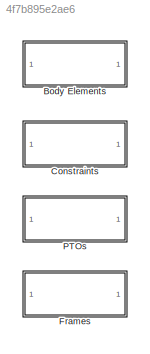
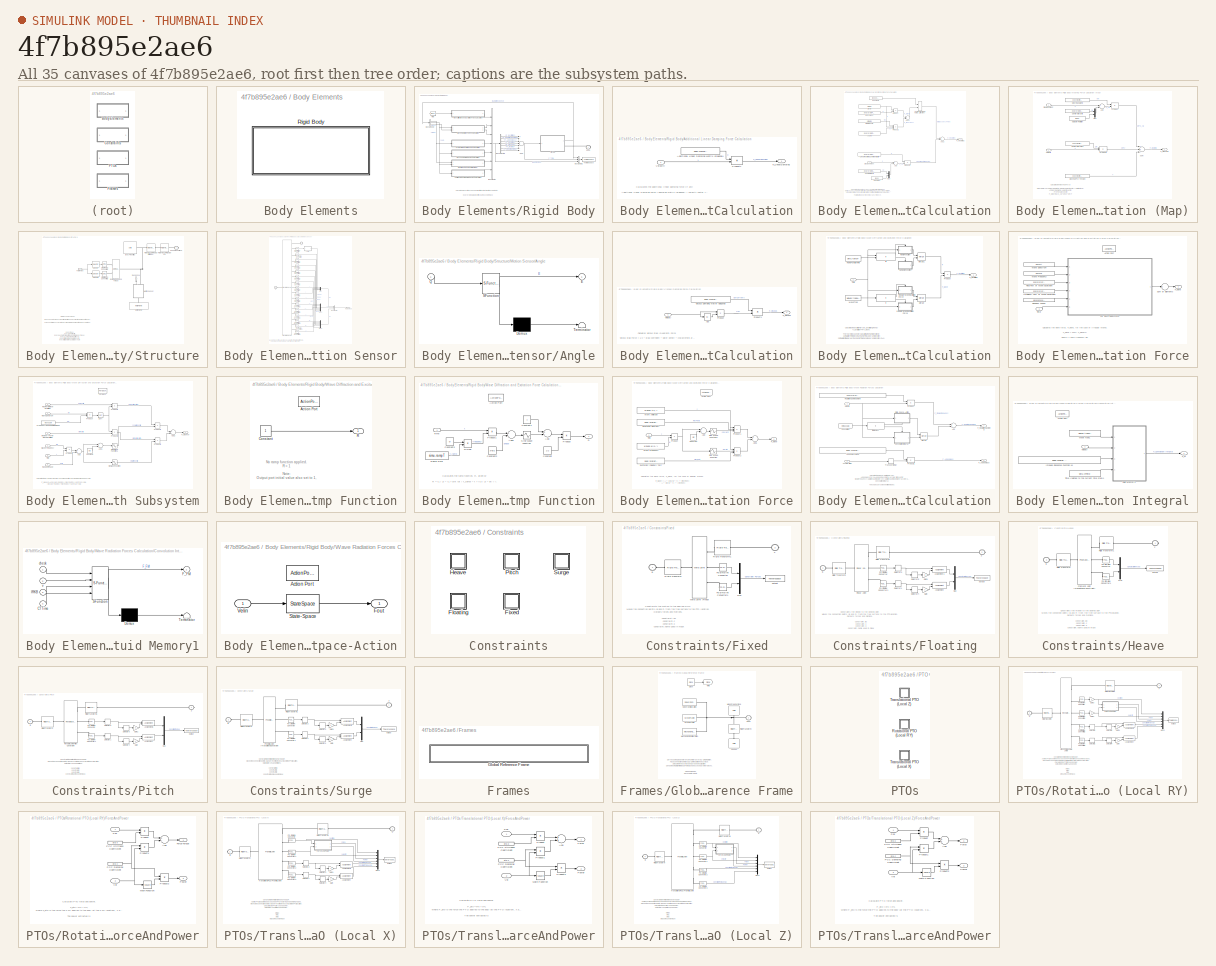
[diagram: thumbnail index - all 35 canvases of the model, root first then tree order]
MODEL slx_4f7b895e2ae6
KIND library
BLOCK [SubSystem] Body Elements
  Ports = []
  RequestExecContextInheritance = off
BLOCK [SubSystem] Body Elements/Rigid Body
  AttributesFormatString = %<body>
  Ports = [0, 0, 0, 0, 0, 0, 1]
  RequestExecContextInheritance = off
BLOCK [SubSystem] Body Elements/Rigid Body/Additional Linear Damping Force Calculation
  Ports = [1, 1]
  RequestExecContextInheritance = off
BLOCK [Constant] Body Elements/Rigid Body/Additional Linear Damping Force Calculation/Additional Linear Damping Matrix (diagonal)
  Value = body.hydroForce.linearDamping
BLOCK [Outport] Body Elements/Rigid Body/Additional Linear Damping Force Calculation/F_LinearDamping
  IconDisplay = Port number
BLOCK [Product] Body Elements/Rigid Body/Additional Linear Damping Force Calculation/Product1
  InputSameDT = off
  Multiplication = Matrix(*)
  OutDataTypeStr = Inherit: Inherit via internal rule
  Ports = [2, 1]
  RndMeth = Floor
  SaturateOnIntegerOverflow = off
BLOCK [Inport] Body Elements/Rigid Body/Additional Linear Damping Force Calculation/Velocity
  IconDisplay = Port number
BLOCK [BusCreator] Body Elements/Rigid Body/Bus Creator
  DisplayOption = bar
  Inputs = 7
  Ports = [7, 1]
BLOCK [BusCreator] Body Elements/Rigid Body/Bus Creator1
  DisplayOption = bar
  Inputs = 3
  Ports = [3, 1]
BLOCK [BusSelector] Body Elements/Rigid Body/Bus Selector
  OutputSignals = disp,vel,acc
  Ports = [1, 3]
BLOCK [BusSelector] Body Elements/Rigid Body/Bus Selector1
  OutputSignals = F_Excitation,F_RadiationDamping,F_AddedMass,F_Restoring,F_Viscous,F_Mooring,F_LinearDamping
  Ports = [1, 7]
BLOCK [PMIOPort] Body Elements/Rigid Body/Conn
  Port = 1
  Side = Right
BLOCK [SubSystem] Body Elements/Rigid Body/Hydrostatic Restoring Force Calculation
  Ports = [1, 1]
  RequestExecContextInheritance = off
BLOCK [Sum] Body Elements/Rigid Body/Hydrostatic Restoring Force Calculation/Add
  InputSameDT = off
  Inputs = +-
  OutDataTypeStr = Inherit: Inherit via internal rule
  Ports = [2, 1]
  SaturateOnIntegerOverflow = off
BLOCK [Sum] Body Elements/Rigid Body/Hydrostatic Restoring Force Calculation/Add1
  InputSameDT = off
  Inputs = +-
  OutDataTypeStr = Inherit: Inherit via internal rule
  Ports = [2, 1]
  SaturateOnIntegerOverflow = off
BLOCK [Sum] Body Elements/Rigid Body/Hydrostatic Restoring Force Calculation/Add2
  InputSameDT = off
  OutDataTypeStr = Inherit: Inherit via internal rule
  Ports = [2, 1]
  SaturateOnIntegerOverflow = off
BLOCK [Assignment] Body Elements/Rigid Body/Hydrostatic Restoring Force Calculation/Assignment (Add Net Bouyancy Force to Z-Direction)
  Indices = 3
  Ports = [2, 1]
BLOCK [Constant] Body Elements/Rigid Body/Hydrostatic Restoring Force Calculation/Body Mass
  Value = body.hydroForce.storage.mass
BLOCK [Constant] Body Elements/Rigid Body/Hydrostatic Restoring Force Calculation/Center of Gravity
  Value = body.hydroData.properties.cg
BLOCK [Constant] Body Elements/Rigid Body/Hydrostatic Restoring Force Calculation/Constant
  Value = [0 0 0]
BLOCK [Constant] Body Elements/Rigid Body/Hydrostatic Restoring Force Calculation/Constant1
  Value = [0 0 0 0 0 0]
BLOCK [Inport] Body Elements/Rigid Body/Hydrostatic Restoring Force Calculation/Displacement
  IconDisplay = Port number
BLOCK [Outport] Body Elements/Rigid Body/Hydrostatic Restoring Force Calculation/F_Restoring
  IconDisplay = Port number
BLOCK [Constant] Body Elements/Rigid Body/Hydrostatic Restoring Force Calculation/Gravity
  Value = simu.g
BLOCK [Constant] Body Elements/Rigid Body/Hydrostatic Restoring Force Calculation/Linear Restioring Coefficient Matrix
  Value = body.hydroForce.linearHydroRestCoef
BLOCK [Mux] Body Elements/Rigid Body/Hydrostatic Restoring Force Calculation/Mux
  DisplayOption = bar
  Inputs = 2
  Ports = [2, 1]
BLOCK [Product] Body Elements/Rigid Body/Hydrostatic Restoring Force Calculation/Product
  InputSameDT = off
  OutDataTypeStr = Inherit: Inherit via internal rule
  Ports = [2, 1]
  RndMeth = Floor
  SaturateOnIntegerOverflow = off
BLOCK [Product] Body Elements/Rigid Body/Hydrostatic Restoring Force Calculation/Product1
  InputSameDT = off
  Inputs = 3
  OutDataTypeStr = Inherit: Inherit via internal rule
  Ports = [3, 1]
  RndMeth = Floor
  SaturateOnIntegerOverflow = off
BLOCK [Product] Body Elements/Rigid Body/Hydrostatic Restoring Force Calculation/Product2
  InputSameDT = off
  Multiplication = Matrix(*)
  OutDataTypeStr = Inherit: Inherit via internal rule
  Ports = [2, 1]
  RndMeth = Floor
  SaturateOnIntegerOverflow = off
BLOCK [Constant] Body Elements/Rigid Body/Hydrostatic Restoring Force Calculation/Volume
  Value = body.hydroData.properties.disp_vol
BLOCK [Constant] Body Elements/Rigid Body/Hydrostatic Restoring Force Calculation/Water Density
  Value = simu.rho
BLOCK [SubSystem] Body Elements/Rigid Body/Mooring Force Calculation (Map)
  Ports = [2, 1]
  RequestExecContextInheritance = off
BLOCK [Constant] Body Elements/Rigid Body/Mooring Force Calculation (Map)/0 Disp for Rotation
  Value = [0 0 0]
BLOCK [Sum] Body Elements/Rigid Body/Mooring Force Calculation (Map)/Add
  InputSameDT = off
  Inputs = +-
  OutDataTypeStr = Inherit: Inherit via internal rule
  Ports = [2, 1]
  SaturateOnIntegerOverflow = off
BLOCK [Constant] Body Elements/Rigid Body/Mooring Force Calculation (Map)/Center of Gravity
  Value = body.hydroData.properties.cg
BLOCK [Constant] Body Elements/Rigid Body/Mooring Force Calculation (Map)/Center of Gravity2
  Value = body.mooring.c
BLOCK [Inport] Body Elements/Rigid Body/Mooring Force Calculation (Map)/Displacement
  IconDisplay = Port number
BLOCK [Outport] Body Elements/Rigid Body/Mooring Force Calculation (Map)/F_Mooring
  IconDisplay = Port number
BLOCK [Constant] Body Elements/Rigid Body/Mooring Force Calculation (Map)/Mooring K Matrix
  Value = body.mooring.k
BLOCK [Constant] Body Elements/Rigid Body/Mooring Force Calculation (Map)/Mooring Pre-Tension
  Value = body.mooring.preTension
BLOCK [Mux] Body Elements/Rigid Body/Mooring Force Calculation (Map)/Mux
  DisplayOption = bar
  Inputs = 2
  Ports = [2, 1]
BLOCK [Product] Body Elements/Rigid Body/Mooring Force Calculation (Map)/Product
  InputSameDT = off
  Multiplication = Matrix(*)
  OutDataTypeStr = Inherit: Inherit via internal rule
  Ports = [2, 1]
  RndMeth = Floor
  SaturateOnIntegerOverflow = off
BLOCK [Product] Body Elements/Rigid Body/Mooring Force Calculation (Map)/Product1
  InputSameDT = off
  Multiplication = Matrix(*)
  OutDataTypeStr = Inherit: Inherit via internal rule
  Ports = [2, 1]
  RndMeth = Floor
  SaturateOnIntegerOverflow = off
BLOCK [Inport] Body Elements/Rigid Body/Mooring Force Calculation (Map)/Velocity
  IconDisplay = Port number
  Port = 2
BLOCK [Sum] Body Elements/Rigid Body/Mooring Force Calculation (Map)/sum
  InputSameDT = off
  Inputs = ++-
  OutDataTypeStr = Inherit: Inherit via internal rule
  Ports = [3, 1]
  SaturateOnIntegerOverflow = off
BLOCK [SubSystem] Body Elements/Rigid Body/Structure
  Ports = [1, 1, 0, 0, 0, 0, 1]
  RequestExecContextInheritance = off
BLOCK [Reference] Body Elements/Rigid Body/Structure/Body Properties  REF=sm_lib/Body Elements/Solid
  BlockFunction = simmechanics.library.body_elements.solid
  BrickDimensionUnits = m
  BrickDimensions = [1 1 1]
  CenterOfMass = [0 0 0]
  CenterOfMassUnits = m
  ClassName = Solid
  CylinderLength = 1
  CylinderLengthUnits = m
  CylinderRadius = 1
  CylinderRadiusUnits = m
  Density = 1000
  DensityBased = on
  DensityUnits = kg/(m^3)
  EllipsoidRadii = [1 1 1]
  EllipsoidRadiiUnits = m
  ExtGeomFileName = geometry/Flap.stl
  ExtGeomFileType = STL
  ExtGeomFileUnits = m
  ExtrusionCrossSection = [1 1; -1 1; -1 -1; 1 -1]
  ExtrusionCrossSectionUnits = m
  ExtrusionLength = 1
  ExtrusionLengthUnits = m
  GeometryShape = FromFile
  GraphicAmbientColor = [0.15 0.15 0.15 1.0]
  GraphicDiffuseColor = [1 1 0]
  GraphicEmissiveColor = [0.0 0.0 0.0 1.0]
  GraphicOpacity = 1
  GraphicShininess = 75
  GraphicSpecularColor = [0.5 0.5 0.5 1.0]
  GraphicType = FromGeometry
  GraphicVisPropType = SimpleVisualProperties
  InertiaType = Custom
  LogSimulationData = off
  MarkerShape = Sphere
  MarkerSize = 10
  MarkerSizeUnits = m
  Mass = body.mass
  MassUnits = kg
  MomentsOfInertia = body.momOfInertia
  MomentsOfInertiaUnits = kg*m^2
  PolygonNumSides = 3
  PolygonOuterRadius = 1
  PolygonOuterRadiusUnits = m
  Ports = [0, 0, 0, 0, 0, 0, 1]
  ProductsOfInertia = [0 0 0]
  ProductsOfInertiaUnits = kg*m^2
  RectangleSize = [1 1]
  RectangleSizeUnits = m
  RevolutionAngle = 180
  RevolutionAngleUnits = deg
  RevolutionCrossSection = [1 1; 1 -1; 2 -1; 2 1]
  RevolutionCrossSectionUnits = m
  RevolutionExtent = Full
  SourceBlock = sm_lib/Body Elements/Solid
  SourceType = Solid
  SphereRadius = 1
  SphereRadiusUnits = m
BLOCK [PMIOPort] Body Elements/Rigid Body/Structure/Conn Free Surface
  Port = 1
  Side = Right
BLOCK [Reference] Body Elements/Rigid Body/Structure/External Force and Torque  REF=sm_lib/Forces and
Torques/External Force
and Torque
  BlockFunction = simmechanics.library.forces_torques.external_force_torque
  ClassName = ExternalForceTorque
  EnableForce = on
  EnableForceX = off
  EnableForceY = off
  EnableForceZ = off
  EnableTorque = on
  EnableTorqueX = off
  EnableTorqueY = off
  EnableTorqueZ = off
  ForceResolutionFrame = World
  LogSimulationData = off
  Ports = [0, 0, 0, 0, 0, 2, 1]
  SourceBlock = sm_lib/Forces and\nTorques/External Force\nand Torque
  SourceType = External Force\nand Torque
  TorqueResolutionFrame = World
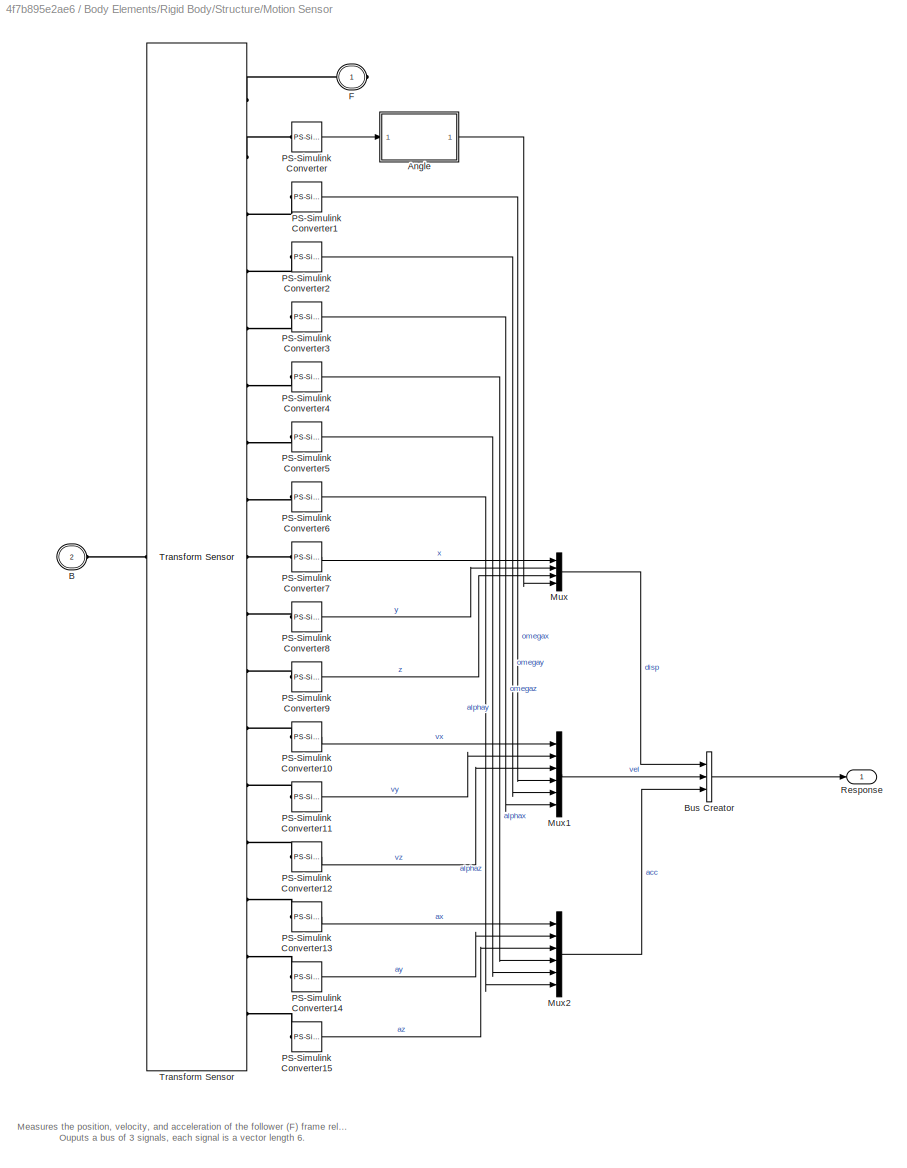
BLOCK [SubSystem] Body Elements/Rigid Body/Structure/Motion Sensor
  Ports = [0, 1, 0, 0, 0, 1, 1]
  RequestExecContextInheritance = off
BLOCK [SubSystem] Body Elements/Rigid Body/Structure/Motion Sensor/Angle
  ErrorFcn = Stateflow.Translate.translate
  PermitHierarchicalResolution = ExplicitOnly
  Ports = [1, 1]
  RequestExecContextInheritance = off
  SFBlockType = MATLAB Function
  TreatAsAtomicUnit = on
BLOCK [Demux] Body Elements/Rigid Body/Structure/Motion Sensor/Angle/ Demux 
  Outputs = 1
  Ports = [1, 1]
BLOCK [S-Function] Body Elements/Rigid Body/Structure/Motion Sensor/Angle/ SFunction 
  EnableBusSupport = off
  FunctionName = sf_sfun
  PortCounts = [1 2]
  Ports = [1, 2]
  Tag = Stateflow S-Function WECSim_Lib 8
BLOCK [Terminator] Body Elements/Rigid Body/Structure/Motion Sensor/Angle/ Terminator 
BLOCK [Outport] Body Elements/Rigid Body/Structure/Motion Sensor/Angle/E
  IconDisplay = Port number
BLOCK [Inport] Body Elements/Rigid Body/Structure/Motion Sensor/Angle/Q
  IconDisplay = Port number
BLOCK [PMIOPort] Body Elements/Rigid Body/Structure/Motion Sensor/B
  Port = 2
  Side = Left
BLOCK [BusCreator] Body Elements/Rigid Body/Structure/Motion Sensor/Bus Creator
  DisplayOption = bar
  Inputs = 3
  Ports = [3, 1]
BLOCK [PMIOPort] Body Elements/Rigid Body/Structure/Motion Sensor/F
  Port = 1
  Side = Right
BLOCK [Mux] Body Elements/Rigid Body/Structure/Motion Sensor/Mux
  DisplayOption = bar
  Ports = [4, 1]
BLOCK [Mux] Body Elements/Rigid Body/Structure/Motion Sensor/Mux1
  DisplayOption = bar
  Inputs = 6
  Ports = [6, 1]
BLOCK [Mux] Body Elements/Rigid Body/Structure/Motion Sensor/Mux2
  DisplayOption = bar
  Inputs = 6
  Ports = [6, 1]
BLOCK [Reference] Body Elements/Rigid Body/Structure/Motion Sensor/PS-Simulink Converter  REF=nesl_utility/PS-Simulink
Converter
  AffineConversion = off
  Frequencies = []
  LeftPortType = input
  PhysicalDomain = network_engine_domain
  Ports = [0, 1, 0, 0, 0, 1]
  PseudoPeriodic = off
  RightPortType = output
  SourceBlock = nesl_utility/PS-Simulink\nConverter
  SourceType = PS-Simulink\nConverter
  SubClassName = ps_output
  Unit = 1
BLOCK [Reference] Body Elements/Rigid Body/Structure/Motion Sensor/PS-Simulink Converter1  REF=nesl_utility/PS-Simulink
Converter
  AffineConversion = off
  Frequencies = []
  LeftPortType = input
  PhysicalDomain = network_engine_domain
  Ports = [0, 1, 0, 0, 0, 1]
  PseudoPeriodic = off
  RightPortType = output
  SourceBlock = nesl_utility/PS-Simulink\nConverter
  SourceType = PS-Simulink\nConverter
  SubClassName = ps_output
  Unit = 1
BLOCK [Reference] Body Elements/Rigid Body/Structure/Motion Sensor/PS-Simulink Converter10  REF=nesl_utility/PS-Simulink
Converter
  AffineConversion = off
  Frequencies = []
  LeftPortType = input
  PhysicalDomain = network_engine_domain
  Ports = [0, 1, 0, 0, 0, 1]
  PseudoPeriodic = off
  RightPortType = output
  SourceBlock = nesl_utility/PS-Simulink\nConverter
  SourceType = PS-Simulink\nConverter
  SubClassName = ps_output
  Unit = 1
BLOCK [Reference] Body Elements/Rigid Body/Structure/Motion Sensor/PS-Simulink Converter11  REF=nesl_utility/PS-Simulink
Converter
  AffineConversion = off
  Frequencies = []
  LeftPortType = input
  PhysicalDomain = network_engine_domain
  Ports = [0, 1, 0, 0, 0, 1]
  PseudoPeriodic = off
  RightPortType = output
  SourceBlock = nesl_utility/PS-Simulink\nConverter
  SourceType = PS-Simulink\nConverter
  SubClassName = ps_output
  Unit = 1
BLOCK [Reference] Body Elements/Rigid Body/Structure/Motion Sensor/PS-Simulink Converter12  REF=nesl_utility/PS-Simulink
Converter
  AffineConversion = off
  Frequencies = []
  LeftPortType = input
  PhysicalDomain = network_engine_domain
  Ports = [0, 1, 0, 0, 0, 1]
  PseudoPeriodic = off
  RightPortType = output
  SourceBlock = nesl_utility/PS-Simulink\nConverter
  SourceType = PS-Simulink\nConverter
  SubClassName = ps_output
  Unit = 1
BLOCK [Reference] Body Elements/Rigid Body/Structure/Motion Sensor/PS-Simulink Converter13  REF=nesl_utility/PS-Simulink
Converter
  AffineConversion = off
  Frequencies = []
  LeftPortType = input
  PhysicalDomain = network_engine_domain
  Ports = [0, 1, 0, 0, 0, 1]
  PseudoPeriodic = off
  RightPortType = output
  SourceBlock = nesl_utility/PS-Simulink\nConverter
  SourceType = PS-Simulink\nConverter
  SubClassName = ps_output
  Unit = 1
BLOCK [Reference] Body Elements/Rigid Body/Structure/Motion Sensor/PS-Simulink Converter14  REF=nesl_utility/PS-Simulink
Converter
  AffineConversion = off
  Frequencies = []
  LeftPortType = input
  PhysicalDomain = network_engine_domain
  Ports = [0, 1, 0, 0, 0, 1]
  PseudoPeriodic = off
  RightPortType = output
  SourceBlock = nesl_utility/PS-Simulink\nConverter
  SourceType = PS-Simulink\nConverter
  SubClassName = ps_output
  Unit = 1
BLOCK [Reference] Body Elements/Rigid Body/Structure/Motion Sensor/PS-Simulink Converter15  REF=nesl_utility/PS-Simulink
Converter
  AffineConversion = off
  Frequencies = []
  LeftPortType = input
  PhysicalDomain = network_engine_domain
  Ports = [0, 1, 0, 0, 0, 1]
  PseudoPeriodic = off
  RightPortType = output
  SourceBlock = nesl_utility/PS-Simulink\nConverter
  SourceType = PS-Simulink\nConverter
  SubClassName = ps_output
  Unit = 1
BLOCK [Reference] Body Elements/Rigid Body/Structure/Motion Sensor/PS-Simulink Converter2  REF=nesl_utility/PS-Simulink
Converter
  AffineConversion = off
  Frequencies = []
  LeftPortType = input
  PhysicalDomain = network_engine_domain
  Ports = [0, 1, 0, 0, 0, 1]
  PseudoPeriodic = off
  RightPortType = output
  SourceBlock = nesl_utility/PS-Simulink\nConverter
  SourceType = PS-Simulink\nConverter
  SubClassName = ps_output
  Unit = 1
BLOCK [Reference] Body Elements/Rigid Body/Structure/Motion Sensor/PS-Simulink Converter3  REF=nesl_utility/PS-Simulink
Converter
  AffineConversion = off
  Frequencies = []
  LeftPortType = input
  PhysicalDomain = network_engine_domain
  Ports = [0, 1, 0, 0, 0, 1]
  PseudoPeriodic = off
  RightPortType = output
  SourceBlock = nesl_utility/PS-Simulink\nConverter
  SourceType = PS-Simulink\nConverter
  SubClassName = ps_output
  Unit = 1
BLOCK [Reference] Body Elements/Rigid Body/Structure/Motion Sensor/PS-Simulink Converter4  REF=nesl_utility/PS-Simulink
Converter
  AffineConversion = off
  Frequencies = []
  LeftPortType = input
  PhysicalDomain = network_engine_domain
  Ports = [0, 1, 0, 0, 0, 1]
  PseudoPeriodic = off
  RightPortType = output
  SourceBlock = nesl_utility/PS-Simulink\nConverter
  SourceType = PS-Simulink\nConverter
  SubClassName = ps_output
  Unit = 1
BLOCK [Reference] Body Elements/Rigid Body/Structure/Motion Sensor/PS-Simulink Converter5  REF=nesl_utility/PS-Simulink
Converter
  AffineConversion = off
  Frequencies = []
  LeftPortType = input
  PhysicalDomain = network_engine_domain
  Ports = [0, 1, 0, 0, 0, 1]
  PseudoPeriodic = off
  RightPortType = output
  SourceBlock = nesl_utility/PS-Simulink\nConverter
  SourceType = PS-Simulink\nConverter
  SubClassName = ps_output
  Unit = 1
BLOCK [Reference] Body Elements/Rigid Body/Structure/Motion Sensor/PS-Simulink Converter6  REF=nesl_utility/PS-Simulink
Converter
  AffineConversion = off
  Frequencies = []
  LeftPortType = input
  PhysicalDomain = network_engine_domain
  Ports = [0, 1, 0, 0, 0, 1]
  PseudoPeriodic = off
  RightPortType = output
  SourceBlock = nesl_utility/PS-Simulink\nConverter
  SourceType = PS-Simulink\nConverter
  SubClassName = ps_output
  Unit = 1
BLOCK [Reference] Body Elements/Rigid Body/Structure/Motion Sensor/PS-Simulink Converter7  REF=nesl_utility/PS-Simulink
Converter
  AffineConversion = off
  Frequencies = []
  LeftPortType = input
  PhysicalDomain = network_engine_domain
  Ports = [0, 1, 0, 0, 0, 1]
  PseudoPeriodic = off
  RightPortType = output
  SourceBlock = nesl_utility/PS-Simulink\nConverter
  SourceType = PS-Simulink\nConverter
  SubClassName = ps_output
  Unit = 1
BLOCK [Reference] Body Elements/Rigid Body/Structure/Motion Sensor/PS-Simulink Converter8  REF=nesl_utility/PS-Simulink
Converter
  AffineConversion = off
  Frequencies = []
  LeftPortType = input
  PhysicalDomain = network_engine_domain
  Ports = [0, 1, 0, 0, 0, 1]
  PseudoPeriodic = off
  RightPortType = output
  SourceBlock = nesl_utility/PS-Simulink\nConverter
  SourceType = PS-Simulink\nConverter
  SubClassName = ps_output
  Unit = 1
BLOCK [Reference] Body Elements/Rigid Body/Structure/Motion Sensor/PS-Simulink Converter9  REF=nesl_utility/PS-Simulink
Converter
  AffineConversion = off
  Frequencies = []
  LeftPortType = input
  PhysicalDomain = network_engine_domain
  Ports = [0, 1, 0, 0, 0, 1]
  PseudoPeriodic = off
  RightPortType = output
  SourceBlock = nesl_utility/PS-Simulink\nConverter
  SourceType = PS-Simulink\nConverter
  SubClassName = ps_output
  Unit = 1
BLOCK [Outport] Body Elements/Rigid Body/Structure/Motion Sensor/Response
  IconDisplay = Port number
BLOCK [Reference] Body Elements/Rigid Body/Structure/Motion Sensor/Transform Sensor  REF=sm_lib/Frames and
Transforms/Transform
Sensor
  BlockFunction = simmechanics.library.frames_transforms.transform_sensor
  ClassName = TransformSensor
  LogSimulationData = off
  MeasurementFrame = World
  Ports = [0, 0, 0, 0, 0, 1, 17]
  SenseAlpha1 = off
  SenseAlpha2 = off
  SenseAlpha3 = off
  SenseAlphaX = on
  SenseAlphaY = on
  SenseAlphaZ = on
  SenseAngle = off
  SenseAngle1 = off
  SenseAngle2 = off
  SenseAngle3 = off
  SenseAxis = off
  SenseAzim = off
  SenseAzimDDot = off
  SenseAzimDot = off
  SenseDist = off
  SenseDistDDot = off
  SenseDistDot = off
  SenseInc = off
  SenseIncDDot = off
  SenseIncDot = off
  SenseOmega1 = off
  SenseOmega2 = off
  SenseOmega3 = off
  SenseOmegaX = on
  SenseOmegaY = on
  SenseOmegaZ = on
  SenseQ = on
  SenseQDDot = off
  SenseQDot = off
  SenseR = off
  SenseRDDot = off
  SenseRDot = off
  SenseRad = off
  SenseRadDDot = off
  SenseRadDot = off
  SenseX = on
  SenseXDDot = on
  SenseXDot = on
  SenseY = on
  SenseYDDot = on
  SenseYDot = on
  SenseZ = on
  SenseZDDot = on
  SenseZDot = on
  SourceBlock = sm_lib/Frames and\nTransforms/Transform\nSensor
  SourceType = Transform\nSensor
BLOCK [Outport] Body Elements/Rigid Body/Structure/Response
  IconDisplay = Port number
BLOCK [Reference] Body Elements/Rigid Body/Structure/Rigid Transform (Setup CG)  REF=sm_lib/Frames and
Transforms/Rigid
Transform
  BaseAlignAxisA = +Y
  BaseAlignAxisB = +Z
  BlockFunction = simmechanics.library.frames_transforms.rigid_transform
  ClassName = RigidTransform
  FollAlignAxisA = +X
  FollAlignAxisB = +Y
  LogSimulationData = off
  Ports = [0, 0, 0, 0, 0, 1, 1]
  RotationAngle = 0.05
  RotationAngleUnits = rad
  RotationArbitraryAxis = [0.57735026918962584 0.57735026918962584 0.57735026918962584]
  RotationMatrix = [1 0 0; 0 1 0; 0 0 1]
  RotationMethod = None
  RotationStandardAxis = +Y
  SourceBlock = sm_lib/Frames and\nTransforms/Rigid\nTransform
  SourceType = Rigid\nTransform
  TranslationCartesianOffset = body.hydroData.properties.cg
  TranslationLengthUnit = m
  TranslationMethod = Cartesian
  TranslationROffset = 0
  TranslationROffsetUnits = m
  TranslationStandardAxis = +Z
  TranslationStandardOffset = 0
  TranslationThetaOffset = 0
  TranslationThetaOffsetUnits = deg
  TranslationZOffset = 0
  TranslationZOffsetUnits = m
BLOCK [Reference] Body Elements/Rigid Body/Structure/Rigid Transform (Setup Initial Disp)  REF=sm_lib/Frames and
Transforms/Rigid
Transform
  BaseAlignAxisA = +Y
  BaseAlignAxisB = +Z
  BlockFunction = simmechanics.library.frames_transforms.rigid_transform
  ClassName = RigidTransform
  FollAlignAxisA = +X
  FollAlignAxisB = +Y
  LogSimulationData = off
  Ports = [0, 0, 0, 0, 0, 1, 1]
  RotationAngle = body.initDisp.initAngularDispAngle
  RotationAngleUnits = rad
  RotationArbitraryAxis = body.initDisp.initAngularDispAxis
  RotationMatrix = [1 0 0; 0 1 0; 0 0 1]
  RotationMethod = ArbitraryAxis
  RotationStandardAxis = +Y
  SourceBlock = sm_lib/Frames and\nTransforms/Rigid\nTransform
  SourceType = Rigid\nTransform
  TranslationCartesianOffset = body.initDisp.initLinDisp
  TranslationLengthUnit = m
  TranslationMethod = Cartesian
  TranslationROffset = 0
  TranslationROffsetUnits = m
  TranslationStandardAxis = +Z
  TranslationStandardOffset = 0
  TranslationThetaOffset = 0
  TranslationThetaOffsetUnits = deg
  TranslationZOffset = 0
  TranslationZOffsetUnits = m
BLOCK [Selector] Body Elements/Rigid Body/Structure/Selector
  Indices = [1:3]
  InputPortWidth = 6
  Ports = [1, 1]
BLOCK [Selector] Body Elements/Rigid Body/Structure/Selector1
  Indices = [4:6]
  InputPortWidth = 6
  Ports = [1, 1]
BLOCK [Reference] Body Elements/Rigid Body/Structure/Simulink-PS Converter1  REF=nesl_utility/Simulink-PS
Converter
  AffineConversion = off
  Frequencies = []
  InputFilterTimeConstant = 0.001
  InputFiltering = off
  LeftPortType = input
  NoiseDistribution = none
  NoiseParameters = []
  PhysicalDomain = network_engine_domain
  Ports = [1, 0, 0, 0, 0, 0, 1]
  PseudoPeriodic = off
  RightPortType = output
  SimscapeFilterOrder = 1
  SourceBlock = nesl_utility/Simulink-PS\nConverter
  SourceType = Simulink-PS\nConverter
  SubClassName = ps_input
  UdotUserProvided = 1
  Unit = 1
BLOCK [Reference] Body Elements/Rigid Body/Structure/Simulink-PS Converter2  REF=nesl_utility/Simulink-PS
Converter
  AffineConversion = off
  Frequencies = []
  InputFilterTimeConstant = 0.001
  InputFiltering = off
  LeftPortType = input
  NoiseDistribution = none
  NoiseParameters = []
  PhysicalDomain = network_engine_domain
  Ports = [1, 0, 0, 0, 0, 0, 1]
  PseudoPeriodic = off
  RightPortType = output
  SimscapeFilterOrder = 1
  SourceBlock = nesl_utility/Simulink-PS\nConverter
  SourceType = Simulink-PS\nConverter
  SubClassName = ps_input
  UdotUserProvided = 1
  Unit = 1
BLOCK [Inport] Body Elements/Rigid Body/Structure/Total Force
  IconDisplay = Port number
BLOCK [Reference] Body Elements/Rigid Body/Structure/World Frame  REF=sm_lib/Frames and
Transforms/World Frame
  BlockFunction = simmechanics.library.frames_transforms.world_frame
  ClassName = WorldFrame
  LogSimulationData = off
  Ports = [0, 0, 0, 0, 0, 0, 1]
  SourceBlock = sm_lib/Frames and\nTransforms/World Frame
  SourceType = World Frame
BLOCK [Sum] Body Elements/Rigid Body/Sum
  InputSameDT = off
  Inputs = +------
  OutDataTypeStr = Inherit: Inherit via internal rule
  Ports = [7, 1]
  SaturateOnIntegerOverflow = off
BLOCK [From] Body Elements/Rigid Body/Time
  GotoTag = Clock
  TagVisibility = global
BLOCK [ToWorkspace] Body Elements/Rigid Body/To Workspace
  MaxDataPoints = inf
  Ports = [1]
  SampleTime = -1
  SaveFormat = Structure With Time
  VariableName = body1_out
BLOCK [SubSystem] Body Elements/Rigid Body/Viscous Damping Force Calculation
  Ports = [1, 1]
  RequestExecContextInheritance = off
BLOCK [Abs] Body Elements/Rigid Body/Viscous Damping Force Calculation/Abs
  SaturateOnIntegerOverflow = off
BLOCK [Outport] Body Elements/Rigid Body/Viscous Damping Force Calculation/F_Viscous
  IconDisplay = Port number
BLOCK [Product] Body Elements/Rigid Body/Viscous Damping Force Calculation/Product
  InputSameDT = off
  OutDataTypeStr = Inherit: Inherit via internal rule
  Ports = [2, 1]
  RndMeth = Floor
  SaturateOnIntegerOverflow = off
BLOCK [Product] Body Elements/Rigid Body/Viscous Damping Force Calculation/Product1
  InputSameDT = off
  Multiplication = Matrix(*)
  OutDataTypeStr = Inherit: Inherit via internal rule
  Ports = [2, 1]
  RndMeth = Floor
  SaturateOnIntegerOverflow = off
BLOCK [Inport] Body Elements/Rigid Body/Viscous Damping Force Calculation/Velocity
  IconDisplay = Port number
BLOCK [Constant] Body Elements/Rigid Body/Viscous Damping Force Calculation/Viscous Damping Matrix (diagonal) 
  Value = body.hydroForce.visDrag
BLOCK [SubSystem] Body Elements/Rigid Body/Wave Diffraction and Excitation Force Calculation
  Ports = [1, 1]
  RequestExecContextInheritance = off
BLOCK [Outport] Body Elements/Rigid Body/Wave Diffraction and Excitation Force Calculation/F_Excitation
  IconDisplay = Port number
  PortDimensions = 6
  VarSizeSig = No
BLOCK [If] Body Elements/Rigid Body/Wave Diffraction and Excitation Force Calculation/If
  IfExpression = u1 < 20
  Ports = [1, 2]
BLOCK [If] Body Elements/Rigid Body/Wave Diffraction and Excitation Force Calculation/If1
  IfExpression = u1 < u2
  NumInputs = 2
  Ports = [2, 2]
BLOCK [SubSystem] Body Elements/Rigid Body/Wave Diffraction and Excitation Force Calculation/Iregular Wave Excitation Force
  Ports = [1, 1, 0, 0, 0, 0, 0, 1]
  RequestExecContextInheritance = off
  TreatAsAtomicUnit = on
BLOCK [ActionPort] Body Elements/Rigid Body/Wave Diffraction and Excitation Force Calculation/Iregular Wave Excitation Force/Action Port
BLOCK [Outport] Body Elements/Rigid Body/Wave Diffraction and Excitation Force Calculation/Iregular Wave Excitation Force/F_wave
  IconDisplay = Port number
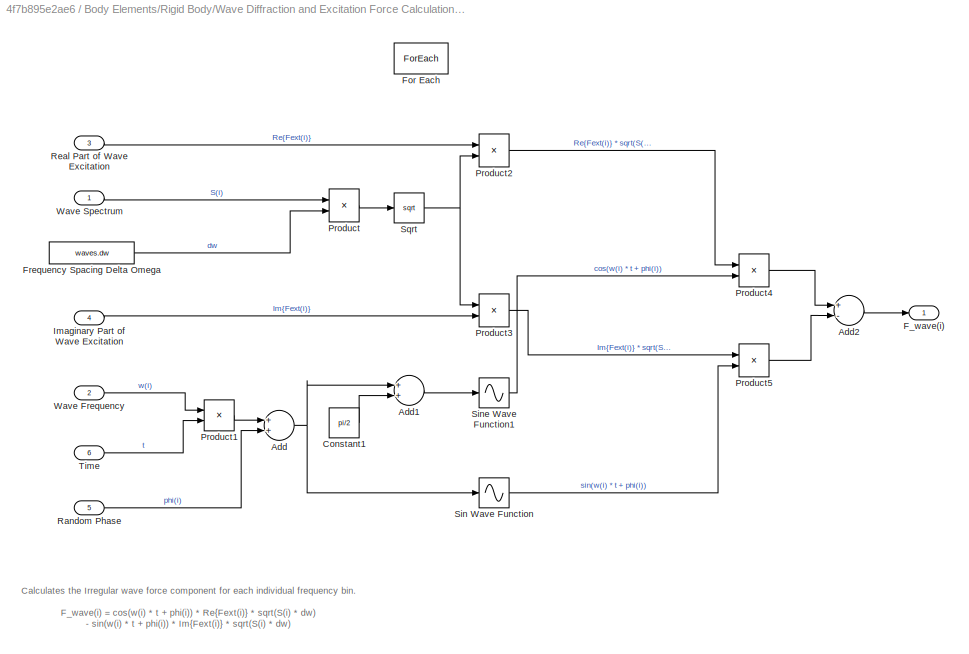
BLOCK [SubSystem] Body Elements/Rigid Body/Wave Diffraction and Excitation Force Calculation/Iregular Wave Excitation Force/For Each Subsystem
  Ports = [6, 1]
  RequestExecContextInheritance = off
  TreatAsAtomicUnit = on
BLOCK [Sum] Body Elements/Rigid Body/Wave Diffraction and Excitation Force Calculation/Iregular Wave Excitation Force/For Each Subsystem/Add
  InputSameDT = off
  OutDataTypeStr = Inherit: Inherit via internal rule
  Ports = [2, 1]
  SaturateOnIntegerOverflow = off
BLOCK [Sum] Body Elements/Rigid Body/Wave Diffraction and Excitation Force Calculation/Iregular Wave Excitation Force/For Each Subsystem/Add1
  InputSameDT = off
  OutDataTypeStr = Inherit: Inherit via internal rule
  Ports = [2, 1]
  SaturateOnIntegerOverflow = off
BLOCK [Sum] Body Elements/Rigid Body/Wave Diffraction and Excitation Force Calculation/Iregular Wave Excitation Force/For Each Subsystem/Add2
  InputSameDT = off
  Inputs = +-
  OutDataTypeStr = Inherit: Inherit via internal rule
  Ports = [2, 1]
  SaturateOnIntegerOverflow = off
BLOCK [Constant] Body Elements/Rigid Body/Wave Diffraction and Excitation Force Calculation/Iregular Wave Excitation Force/For Each Subsystem/Constant1
  Value = pi/2
BLOCK [Outport] Body Elements/Rigid Body/Wave Diffraction and Excitation Force Calculation/Iregular Wave Excitation Force/For Each Subsystem/F_wave(i)
  ConcatenationDimension = 1
  IconDisplay = Port number
BLOCK [ForEach] Body Elements/Rigid Body/Wave Diffraction and Excitation Force Calculation/Iregular Wave Excitation Force/For Each Subsystem/For Each
  DisableCoverage = on
  IndexMode = One-based
  Ports = []
BLOCK [Constant] Body Elements/Rigid Body/Wave Diffraction and Excitation Force Calculation/Iregular Wave Excitation Force/For Each Subsystem/Frequency Spacing Delta Omega
  Value = waves.dw
  VectorParams1D = off
BLOCK [Inport] Body Elements/Rigid Body/Wave Diffraction and Excitation Force Calculation/Iregular Wave Excitation Force/For Each Subsystem/Imaginary Part of Wave Excitation
  IconDisplay = Port number
  Partition = on
  PartitionDimension = 1
  PartitionWidth = 1
  Port = 4
BLOCK [Product] Body Elements/Rigid Body/Wave Diffraction and Excitation Force Calculation/Iregular Wave Excitation Force/For Each Subsystem/Product
  InputSameDT = off
  Inputs = **
  OutDataTypeStr = Inherit: Inherit via internal rule
  Ports = [2, 1]
  RndMeth = Floor
  SaturateOnIntegerOverflow = off
BLOCK [Product] Body Elements/Rigid Body/Wave Diffraction and Excitation Force Calculation/Iregular Wave Excitation Force/For Each Subsystem/Product1
  InputSameDT = off
  Inputs = **
  OutDataTypeStr = Inherit: Inherit via internal rule
  Ports = [2, 1]
  RndMeth = Floor
  SaturateOnIntegerOverflow = off
BLOCK [Product] Body Elements/Rigid Body/Wave Diffraction and Excitation Force Calculation/Iregular Wave Excitation Force/For Each Subsystem/Product2
  InputSameDT = off
  Inputs = **
  OutDataTypeStr = Inherit: Inherit via internal rule
  Ports = [2, 1]
  RndMeth = Floor
  SaturateOnIntegerOverflow = off
BLOCK [Product] Body Elements/Rigid Body/Wave Diffraction and Excitation Force Calculation/Iregular Wave Excitation Force/For Each Subsystem/Product3
  InputSameDT = off
  Inputs = **
  OutDataTypeStr = Inherit: Inherit via internal rule
  Ports = [2, 1]
  RndMeth = Floor
  SaturateOnIntegerOverflow = off
BLOCK [Product] Body Elements/Rigid Body/Wave Diffraction and Excitation Force Calculation/Iregular Wave Excitation Force/For Each Subsystem/Product4
  InputSameDT = off
  Inputs = **
  OutDataTypeStr = Inherit: Inherit via internal rule
  Ports = [2, 1]
  RndMeth = Floor
  SaturateOnIntegerOverflow = off
BLOCK [Product] Body Elements/Rigid Body/Wave Diffraction and Excitation Force Calculation/Iregular Wave Excitation Force/For Each Subsystem/Product5
  InputSameDT = off
  Inputs = **
  OutDataTypeStr = Inherit: Inherit via internal rule
  Ports = [2, 1]
  RndMeth = Floor
  SaturateOnIntegerOverflow = off
BLOCK [Inport] Body Elements/Rigid Body/Wave Diffraction and Excitation Force Calculation/Iregular Wave Excitation Force/For Each Subsystem/Random Phase
  IconDisplay = Port number
  Partition = on
  PartitionDimension = 1
  PartitionWidth = 1
  Port = 5
BLOCK [Inport] Body Elements/Rigid Body/Wave Diffraction and Excitation Force Calculation/Iregular Wave Excitation Force/For Each Subsystem/Real Part of Wave Excitation
  IconDisplay = Port number
  Partition = on
  PartitionDimension = 1
  PartitionWidth = 1
  Port = 3
BLOCK [Sin] Body Elements/Rigid Body/Wave Diffraction and Excitation Force Calculation/Iregular Wave Excitation Force/For Each Subsystem/Sin Wave Function
  Ports = [1, 1]
  SampleTime = 0
  TimeSource = Use external signal
BLOCK [Sin] Body Elements/Rigid Body/Wave Diffraction and Excitation Force Calculation/Iregular Wave Excitation Force/For Each Subsystem/Sine Wave Function1
  Ports = [1, 1]
  SampleTime = 0
  TimeSource = Use external signal
BLOCK [Sqrt] Body Elements/Rigid Body/Wave Diffraction and Excitation Force Calculation/Iregular Wave Excitation Force/For Each Subsystem/Sqrt
BLOCK [Inport] Body Elements/Rigid Body/Wave Diffraction and Excitation Force Calculation/Iregular Wave Excitation Force/For Each Subsystem/Time
  IconDisplay = Port number
  Partition = off
  Port = 6
BLOCK [Inport] Body Elements/Rigid Body/Wave Diffraction and Excitation Force Calculation/Iregular Wave Excitation Force/For Each Subsystem/Wave Frequency
  IconDisplay = Port number
  Partition = on
  PartitionDimension = 1
  PartitionWidth = 1
  Port = 2
BLOCK [Inport] Body Elements/Rigid Body/Wave Diffraction and Excitation Force Calculation/Iregular Wave Excitation Force/For Each Subsystem/Wave Spectrum
  IconDisplay = Port number
  Partition = on
  PartitionDimension = 1
  PartitionWidth = 1
BLOCK [Constant] Body Elements/Rigid Body/Wave Diffraction and Excitation Force Calculation/Iregular Wave Excitation Force/Imaginary Part of Wave Excitation
  Value = body.hydroForce.fExt.im
  VectorParams1D = off
BLOCK [Constant] Body Elements/Rigid Body/Wave Diffraction and Excitation Force Calculation/Iregular Wave Excitation Force/Random Phase
  Value = waves.phaseRand
  VectorParams1D = off
BLOCK [Constant] Body Elements/Rigid Body/Wave Diffraction and Excitation Force Calculation/Iregular Wave Excitation Force/Real Part of Wave Excitation
  Value = body.hydroForce.fExt.re
  VectorParams1D = off
BLOCK [Sum] Body Elements/Rigid Body/Wave Diffraction and Excitation Force Calculation/Iregular Wave Excitation Force/Sum of Elements
  CollapseMode = Specified dimension
  InputSameDT = off
  Inputs = +
  OutDataTypeStr = Inherit: Inherit via internal rule
  Ports = [1, 1]
  SaturateOnIntegerOverflow = off
BLOCK [Inport] Body Elements/Rigid Body/Wave Diffraction and Excitation Force Calculation/Iregular Wave Excitation Force/Time
  IconDisplay = Port number
BLOCK [Constant] Body Elements/Rigid Body/Wave Diffraction and Excitation Force Calculation/Iregular Wave Excitation Force/Wave Frequency
  Value = waves.w
  VectorParams1D = off
BLOCK [Constant] Body Elements/Rigid Body/Wave Diffraction and Excitation Force Calculation/Iregular Wave Excitation Force/Wave Spectrum
  Value = waves.A
  VectorParams1D = off
BLOCK [Merge] Body Elements/Rigid Body/Wave Diffraction and Excitation Force Calculation/Merge
  Ports = [2, 1]
BLOCK [Merge] Body Elements/Rigid Body/Wave Diffraction and Excitation Force Calculation/Merge1
  Ports = [2, 1]
BLOCK [SubSystem] Body Elements/Rigid Body/Wave Diffraction and Excitation Force Calculation/No Ramp Function
  Ports = [0, 1, 0, 0, 0, 0, 0, 1]
  RequestExecContextInheritance = off
  TreatAsAtomicUnit = on
BLOCK [ActionPort] Body Elements/Rigid Body/Wave Diffraction and Excitation Force Calculation/No Ramp Function/Action Port
BLOCK [Constant] Body Elements/Rigid Body/Wave Diffraction and Excitation Force Calculation/No Ramp Function/Constant
BLOCK [Outport] Body Elements/Rigid Body/Wave Diffraction and Excitation Force Calculation/No Ramp Function/R
  IconDisplay = Port number
  InitialOutput = 1
BLOCK [Product] Body Elements/Rigid Body/Wave Diffraction and Excitation Force Calculation/Product
  InputSameDT = off
  OutDataTypeStr = Inherit: Inherit via internal rule
  Ports = [2, 1]
  RndMeth = Floor
  SaturateOnIntegerOverflow = off
BLOCK [SubSystem] Body Elements/Rigid Body/Wave Diffraction and Excitation Force Calculation/Ramp Function
  Ports = [1, 1, 0, 0, 0, 0, 0, 1]
  RequestExecContextInheritance = off
  TreatAsAtomicUnit = on
BLOCK [Constant] Body Elements/Rigid Body/Wave Diffraction and Excitation Force Calculation/Ramp Function Time
  Value = simu.rampT
BLOCK [ActionPort] Body Elements/Rigid Body/Wave Diffraction and Excitation Force Calculation/Ramp Function/Action Port
BLOCK [Sum] Body Elements/Rigid Body/Wave Diffraction and Excitation Force Calculation/Ramp Function/Add
  InputSameDT = off
  OutDataTypeStr = Inherit: Inherit via internal rule
  Ports = [2, 1]
  SaturateOnIntegerOverflow = off
BLOCK [Sum] Body Elements/Rigid Body/Wave Diffraction and Excitation Force Calculation/Ramp Function/Add1
  InputSameDT = off
  OutDataTypeStr = Inherit: Inherit via internal rule
  Ports = [2, 1]
  SaturateOnIntegerOverflow = off
BLOCK [Constant] Body Elements/Rigid Body/Wave Diffraction and Excitation Force Calculation/Ramp Function/Constant
  Value = 1/2
BLOCK [Constant] Body Elements/Rigid Body/Wave Diffraction and Excitation Force Calculation/Ramp Function/Constant1
BLOCK [Constant] Body Elements/Rigid Body/Wave Diffraction and Excitation Force Calculation/Ramp Function/Constant2
  Value = 3*pi/2
BLOCK [Constant] Body Elements/Rigid Body/Wave Diffraction and Excitation Force Calculation/Ramp Function/Constant3
  Value = pi
BLOCK [Product] Body Elements/Rigid Body/Wave Diffraction and Excitation Force Calculation/Ramp Function/Divide
  InputSameDT = off
  Inputs = */
  OutDataTypeStr = Inherit: Inherit via internal rule
  Ports = [2, 1]
  RndMeth = Floor
  SaturateOnIntegerOverflow = off
BLOCK [Product] Body Elements/Rigid Body/Wave Diffraction and Excitation Force Calculation/Ramp Function/Product
  InputSameDT = off
  OutDataTypeStr = Inherit: Inherit via internal rule
  Ports = [2, 1]
  RndMeth = Floor
  SaturateOnIntegerOverflow = off
BLOCK [Product] Body Elements/Rigid Body/Wave Diffraction and Excitation Force Calculation/Ramp Function/Product1
  InputSameDT = off
  OutDataTypeStr = Inherit: Inherit via internal rule
  Ports = [2, 1]
  RndMeth = Floor
  SaturateOnIntegerOverflow = off
BLOCK [Outport] Body Elements/Rigid Body/Wave Diffraction and Excitation Force Calculation/Ramp Function/R
  IconDisplay = Port number
BLOCK [Constant] Body Elements/Rigid Body/Wave Diffraction and Excitation Force Calculation/Ramp Function/Ramp Time
  Value = simu.rampT
BLOCK [Sin] Body Elements/Rigid Body/Wave Diffraction and Excitation Force Calculation/Ramp Function/Sine Wave Function
  Ports = [1, 1]
  SampleTime = 0
  TimeSource = Use external signal
BLOCK [Inport] Body Elements/Rigid Body/Wave Diffraction and Excitation Force Calculation/Ramp Function/Time
  IconDisplay = Port number
BLOCK [SubSystem] Body Elements/Rigid Body/Wave Diffraction and Excitation Force Calculation/Regular Wave Excitation Force
  Ports = [1, 1, 0, 0, 0, 0, 0, 1]
  RequestExecContextInheritance = off
  TreatAsAtomicUnit = on
BLOCK [ActionPort] Body Elements/Rigid Body/Wave Diffraction and Excitation Force Calculation/Regular Wave Excitation Force/Action Port
BLOCK [Sum] Body Elements/Rigid Body/Wave Diffraction and Excitation Force Calculation/Regular Wave Excitation Force/Add
  InputSameDT = off
  OutDataTypeStr = Inherit: Inherit via internal rule
  Ports = [2, 1]
  SaturateOnIntegerOverflow = off
BLOCK [Sum] Body Elements/Rigid Body/Wave Diffraction and Excitation Force Calculation/Regular Wave Excitation Force/Add1
  InputSameDT = off
  Inputs = +-
  OutDataTypeStr = Inherit: Inherit via internal rule
  Ports = [2, 1]
  SaturateOnIntegerOverflow = off
BLOCK [Constant] Body Elements/Rigid Body/Wave Diffraction and Excitation Force Calculation/Regular Wave Excitation Force/Constant
  Value = pi/2
BLOCK [Constant] Body Elements/Rigid Body/Wave Diffraction and Excitation Force Calculation/Regular Wave Excitation Force/Excitation Imaginary Part
  Value = body.hydroForce.fExt.im(1,:)
  VectorParams1D = off
BLOCK [Constant] Body Elements/Rigid Body/Wave Diffraction and Excitation Force Calculation/Regular Wave Excitation Force/Excitation Real Part
  Value = body.hydroForce.fExt.re(1,:)
  VectorParams1D = off
BLOCK [Outport] Body Elements/Rigid Body/Wave Diffraction and Excitation Force Calculation/Regular Wave Excitation Force/F_wave
  IconDisplay = Port number
BLOCK [Product] Body Elements/Rigid Body/Wave Diffraction and Excitation Force Calculation/Regular Wave Excitation Force/Product
  InputSameDT = off
  OutDataTypeStr = Inherit: Inherit via internal rule
  Ports = [2, 1]
  RndMeth = Floor
  SaturateOnIntegerOverflow = off
BLOCK [Product] Body Elements/Rigid Body/Wave Diffraction and Excitation Force Calculation/Regular Wave Excitation Force/Product1
  InputSameDT = off
  Inputs = 3
  OutDataTypeStr = Inherit: Inherit via internal rule
  Ports = [3, 1]
  RndMeth = Floor
  SaturateOnIntegerOverflow = off
BLOCK [Product] Body Elements/Rigid Body/Wave Diffraction and Excitation Force Calculation/Regular Wave Excitation Force/Product2
  InputSameDT = off
  Inputs = 3
  OutDataTypeStr = Inherit: Inherit via internal rule
  Ports = [3, 1]
  RndMeth = Floor
  SaturateOnIntegerOverflow = off
BLOCK [Sin] Body Elements/Rigid Body/Wave Diffraction and Excitation Force Calculation/Regular Wave Excitation Force/Sine Wave Function
  Ports = [1, 1]
  SampleTime = 0
  TimeSource = Use external signal
BLOCK [Sin] Body Elements/Rigid Body/Wave Diffraction and Excitation Force Calculation/Regular Wave Excitation Force/Sine Wave Function1
  Ports = [1, 1]
  SampleTime = 0
  TimeSource = Use external signal
BLOCK [Inport] Body Elements/Rigid Body/Wave Diffraction and Excitation Force Calculation/Regular Wave Excitation Force/Time
  IconDisplay = Port number
BLOCK [Constant] Body Elements/Rigid Body/Wave Diffraction and Excitation Force Calculation/Regular Wave Excitation Force/Wave Amplitude
  Value = waves.A(1,:)
BLOCK [Constant] Body Elements/Rigid Body/Wave Diffraction and Excitation Force Calculation/Regular Wave Excitation Force/Wave Frequency
  Value = waves.w(1,:)
BLOCK [Inport] Body Elements/Rigid Body/Wave Diffraction and Excitation Force Calculation/Time
  IconDisplay = Port number
BLOCK [Constant] Body Elements/Rigid Body/Wave Diffraction and Excitation Force Calculation/Wave Type
  Value = waves.typeNum
BLOCK [SubSystem] Body Elements/Rigid Body/Wave Radiation Forces Calculation
  Ports = [2, 2]
  RequestExecContextInheritance = off
BLOCK [Inport] Body Elements/Rigid Body/Wave Radiation Forces Calculation/Acceleration
  IconDisplay = Port number
  Port = 2
BLOCK [Sum] Body Elements/Rigid Body/Wave Radiation Forces Calculation/Add
  InputSameDT = off
  OutDataTypeStr = Inherit: Inherit via internal rule
  Ports = [2, 1]
  SaturateOnIntegerOverflow = off
BLOCK [Constant] Body Elements/Rigid Body/Wave Radiation Forces Calculation/Added Mass Matrix
  Value = body.hydroForce.fAddedMass(1:6,1+(body.bodyNumber-1)*6:6+(body.bodyNumber-1)*6)
BLOCK [Constant] Body Elements/Rigid Body/Wave Radiation Forces Calculation/ConvOption
  Value = simu.ssCalc
BLOCK [SubSystem] Body Elements/Rigid Body/Wave Radiation Forces Calculation/Convolution Integral
  Ports = [1, 1, 0, 0, 0, 0, 0, 1]
  RequestExecContextInheritance = off
BLOCK [ActionPort] Body Elements/Rigid Body/Wave Radiation Forces Calculation/Convolution Integral/Action Port
BLOCK [Outport] Body Elements/Rigid Body/Wave Radiation Forces Calculation/Convolution Integral/F_CI
  IconDisplay = Port number
BLOCK [SubSystem] Body Elements/Rigid Body/Wave Radiation Forces Calculation/Convolution Integral/Fluid Memory1
  ErrorFcn = Stateflow.Translate.translate
  PermitHierarchicalResolution = ExplicitOnly
  Ports = [4, 1]
  RequestExecContextInheritance = off
  SFBlockType = MATLAB Function
  TreatAsAtomicUnit = on
BLOCK [Demux] Body Elements/Rigid Body/Wave Radiation Forces Calculation/Convolution Integral/Fluid Memory1/ Demux 
  Outputs = 1
  Ports = [1, 1]
BLOCK [S-Function] Body Elements/Rigid Body/Wave Radiation Forces Calculation/Convolution Integral/Fluid Memory1/ SFunction 
  EnableBusSupport = off
  FunctionName = sf_sfun
  PortCounts = [4 2]
  Ports = [4, 2]
  Tag = Stateflow S-Function WECSim_Lib 3
BLOCK [Terminator] Body Elements/Rigid Body/Wave Radiation Forces Calculation/Convolution Integral/Fluid Memory1/ Terminator 
BLOCK [Inport] Body Elements/Rigid Body/Wave Radiation Forces Calculation/Convolution Integral/Fluid Memory1/CTTime
  IconDisplay = Port number
  Port = 4
BLOCK [Outport] Body Elements/Rigid Body/Wave Radiation Forces Calculation/Convolution Integral/Fluid Memory1/F_FM
  IconDisplay = Port number
BLOCK [Inport] Body Elements/Rigid Body/Wave Radiation Forces Calculation/Convolution Integral/Fluid Memory1/IRKB
  IconDisplay = Port number
  Port = 3
BLOCK [Inport] Body Elements/Rigid Body/Wave Radiation Forces Calculation/Convolution Integral/Fluid Memory1/check
  IconDisplay = Port number
BLOCK [Inport] Body Elements/Rigid Body/Wave Radiation Forces Calculation/Convolution Integral/Fluid Memory1/v
  IconDisplay = Port number
  Port = 2
BLOCK [Constant] Body Elements/Rigid Body/Wave Radiation Forces Calculation/Convolution Integral/Impulse Response Function K1
  Value = body.hydroForce.irkb(:,1:6,1+(body.bodyNumber-1)*6:6+(body.bodyNumber-1)*6)
BLOCK [Constant] Body Elements/Rigid Body/Wave Radiation Forces Calculation/Convolution Integral/Time (relative to the current time step)1
  Value = simu.CTTime
BLOCK [Inport] Body Elements/Rigid Body/Wave Radiation Forces Calculation/Convolution Integral/Velocity
  IconDisplay = Port number
BLOCK [Constant] Body Elements/Rigid Body/Wave Radiation Forces Calculation/Convolution Integral/Wave Type1
  Value = waves.typeNum
BLOCK [Outport] Body Elements/Rigid Body/Wave Radiation Forces Calculation/F_AddedMass
  IconDisplay = Port number
  Port = 2
BLOCK [Outport] Body Elements/Rigid Body/Wave Radiation Forces Calculation/F_RadiationDamping
  IconDisplay = Port number
BLOCK [If] Body Elements/Rigid Body/Wave Radiation Forces Calculation/If Statement
  Ports = [1, 2]
BLOCK [Merge] Body Elements/Rigid Body/Wave Radiation Forces Calculation/Merge
  Ports = [2, 1]
BLOCK [Product] Body Elements/Rigid Body/Wave Radiation Forces Calculation/Product
  InputSameDT = off
  Multiplication = Matrix(*)
  OutDataTypeStr = Inherit: Inherit via internal rule
  Ports = [2, 1]
  RndMeth = Floor
  SaturateOnIntegerOverflow = off
BLOCK [Product] Body Elements/Rigid Body/Wave Radiation Forces Calculation/Product1
  InputSameDT = off
  Multiplication = Matrix(*)
  OutDataTypeStr = Inherit: Inherit via internal rule
  Ports = [2, 1]
  RndMeth = Floor
  SaturateOnIntegerOverflow = off
BLOCK [Constant] Body Elements/Rigid Body/Wave Radiation Forces Calculation/Radiation Damping Matrix
  Value = body.hydroForce.fDamping(1:6,1+(body.bodyNumber-1)*6:6+(body.bodyNumber-1)*6)
BLOCK [SubSystem] Body Elements/Rigid Body/Wave Radiation Forces Calculation/State-Space-Action
  Ports = [1, 1, 0, 0, 0, 0, 0, 1]
  RequestExecContextInheritance = off
  TreatAsAtomicUnit = on
BLOCK [ActionPort] Body Elements/Rigid Body/Wave Radiation Forces Calculation/State-Space-Action/Action Port
BLOCK [Outport] Body Elements/Rigid Body/Wave Radiation Forces Calculation/State-Space-Action/Fout
  IconDisplay = Port number
BLOCK [StateSpace] Body Elements/Rigid Body/Wave Radiation Forces Calculation/State-Space-Action/State-Space
  A = body.hydroForce.ssRadf.A
  B = body.hydroForce.ssRadf.B
  C = body.hydroForce.ssRadf.C
  D = body.hydroForce.ssRadf.D
  Ports = [1, 1]
  X0 = 0
BLOCK [Inport] Body Elements/Rigid Body/Wave Radiation Forces Calculation/State-Space-Action/Velin
  IconDisplay = Port number
BLOCK [TransportDelay] Body Elements/Rigid Body/Wave Radiation Forces Calculation/Transport Delay
  DelayTime = 10e-8
  Ports = [1, 1]
BLOCK [Inport] Body Elements/Rigid Body/Wave Radiation Forces Calculation/Velocity
  IconDisplay = Port number
BLOCK [SubSystem] Constraints
  Ports = []
  RequestExecContextInheritance = off
BLOCK [SubSystem] Constraints/Fixed
  AttributesFormatString = %<constraint>
  Ports = [0, 0, 0, 0, 0, 1, 1]
  RequestExecContextInheritance = off
BLOCK [PMIOPort] Constraints/Fixed/B
  Port = 1
  Side = Left
BLOCK [PMIOPort] Constraints/Fixed/F
  Port = 2
  Side = Right
BLOCK [Mux] Constraints/Fixed/Mux
  DisplayOption = bar
  Inputs = 2
  Ports = [2, 1]
BLOCK [Reference] Constraints/Fixed/PS-Simulink Converter  REF=nesl_utility/PS-Simulink
Converter
  AffineConversion = off
  Frequencies = []
  LeftPortType = input
  PhysicalDomain = network_engine_domain
  Ports = [0, 1, 0, 0, 0, 1]
  PseudoPeriodic = off
  RightPortType = output
  SourceBlock = nesl_utility/PS-Simulink\nConverter
  SourceType = PS-Simulink\nConverter
  SubClassName = ps_output
  Unit = 1
BLOCK [Reference] Constraints/Fixed/PS-Simulink Converter1  REF=nesl_utility/PS-Simulink
Converter
  AffineConversion = off
  Frequencies = []
  LeftPortType = input
  PhysicalDomain = network_engine_domain
  Ports = [0, 1, 0, 0, 0, 1]
  PseudoPeriodic = off
  RightPortType = output
  SourceBlock = nesl_utility/PS-Simulink\nConverter
  SourceType = PS-Simulink\nConverter
  SubClassName = ps_output
  Unit = 1
BLOCK [Reference] Constraints/Fixed/Rigid Transform  REF=sm_lib/Frames and
Transforms/Rigid
Transform
  BaseAlignAxisA = +Y
  BaseAlignAxisB = +Z
  BlockFunction = simmechanics.library.frames_transforms.rigid_transform
  ClassName = RigidTransform
  FollAlignAxisA = +X
  FollAlignAxisB = +Y
  LogSimulationData = off
  Ports = [0, 0, 0, 0, 0, 1, 1]
  RotationAngle = 90
  RotationAngleUnits = deg
  RotationArbitraryAxis = [0 0 1]
  RotationMatrix = [1 0 0; 0 1 0; 0 0 1]
  RotationMethod = None
  RotationStandardAxis = +X
  SourceBlock = sm_lib/Frames and\nTransforms/Rigid\nTransform
  SourceType = Rigid\nTransform
  TranslationCartesianOffset = constraint.loc
  TranslationLengthUnit = m
  TranslationMethod = Cartesian
  TranslationROffset = 0
  TranslationROffsetUnits = m
  TranslationStandardAxis = +Z
  TranslationStandardOffset = 0
  TranslationThetaOffset = 0
  TranslationThetaOffsetUnits = deg
  TranslationZOffset = 0
  TranslationZOffsetUnits = m
BLOCK [Reference] Constraints/Fixed/Rigid Transform1  REF=sm_lib/Frames and
Transforms/Rigid
Transform
  BaseAlignAxisA = +Y
  BaseAlignAxisB = +Z
  BlockFunction = simmechanics.library.frames_transforms.rigid_transform
  ClassName = RigidTransform
  FollAlignAxisA = +X
  FollAlignAxisB = +Y
  LogSimulationData = off
  Ports = [0, 0, 0, 0, 0, 1, 1]
  RotationAngle = 90
  RotationAngleUnits = deg
  RotationArbitraryAxis = [0 0 1]
  RotationMatrix = [1 0 0; 0 1 0; 0 0 1]
  RotationMethod = None
  RotationStandardAxis = +X
  SourceBlock = sm_lib/Frames and\nTransforms/Rigid\nTransform
  SourceType = Rigid\nTransform
  TranslationCartesianOffset = constraint.loc
  TranslationLengthUnit = m
  TranslationMethod = Cartesian
  TranslationROffset = 0
  TranslationROffsetUnits = m
  TranslationStandardAxis = +Z
  TranslationStandardOffset = 0
  TranslationThetaOffset = 0
  TranslationThetaOffsetUnits = deg
  TranslationZOffset = 0
  TranslationZOffsetUnits = m
BLOCK [Reference] Constraints/Fixed/Weld Joint (Fixed)  REF=sm_lib/Joints/Weld Joint
  BlockFunction = simmechanics.library.joints.weld_joint
  ClassName = WeldJoint
  CompositeWrenchDir = BaseOnFollower
  CompositeWrenchFrame = BaseFrame
  LogSimulationData = off
  Ports = [0, 0, 0, 0, 0, 1, 3]
  SenseConstraintForce = on
  SenseConstraintForceX = off
  SenseConstraintForceY = off
  SenseConstraintForceZ = off
  SenseConstraintTorque = on
  SenseConstraintTorqueX = off
  SenseConstraintTorqueY = off
  SenseConstraintTorqueZ = off
  SenseTotalForce = off
  SenseTotalForceX = off
  SenseTotalForceY = off
  SenseTotalForceZ = off
  SenseTotalTorque = off
  SenseTotalTorqueX = off
  SenseTotalTorqueY = off
  SenseTotalTorqueZ = off
  SourceBlock = sm_lib/Joints/Weld Joint
  SourceType = Weld Joint
BLOCK [ToWorkspace] Constraints/Fixed/output
  FixptAsFi = on
  MaxDataPoints = inf
  Ports = [1]
  SampleTime = -1
  Save2DSignal = 3-D array (concatenate along third dimension)
  SaveFormat = Structure With Time
  VariableName = constraint1_out
BLOCK [SubSystem] Constraints/Floating
  AttributesFormatString = %<constraint>
  Ports = [0, 0, 0, 0, 0, 1, 1]
  RequestExecContextInheritance = off
BLOCK [Assignment] Constraints/Floating/Assignment
  DiagnosticForDimensions = Warning
  Indices = 2
  Ports = [2, 1]
BLOCK [Assignment] Constraints/Floating/Assignment1
  DiagnosticForDimensions = Warning
  Indices = 2
  Ports = [2, 1]
BLOCK [PMIOPort] Constraints/Floating/B
  Port = 1
  Side = Left
BLOCK [PMIOPort] Constraints/Floating/F
  Port = 2
  Side = Right
BLOCK [Gain] Constraints/Floating/Gain
  Gain = -1
  OutDataTypeStr = Inherit: Inherit via internal rule
  ParamDataTypeStr = Inherit: Inherit via internal rule
  SaturateOnIntegerOverflow = off
BLOCK [Gain] Constraints/Floating/Gain1
  Gain = -1
  OutDataTypeStr = Inherit: Inherit via internal rule
  ParamDataTypeStr = Inherit: Inherit via internal rule
  SaturateOnIntegerOverflow = off
BLOCK [Mux] Constraints/Floating/Mux
  DisplayOption = bar
  Inputs = 2
  Ports = [2, 1]
BLOCK [Reference] Constraints/Floating/PS-Simulink Converter  REF=nesl_utility/PS-Simulink
Converter
  AffineConversion = off
  Frequencies = []
  LeftPortType = input
  PhysicalDomain = network_engine_domain
  Ports = [0, 1, 0, 0, 0, 1]
  PseudoPeriodic = off
  RightPortType = output
  SourceBlock = nesl_utility/PS-Simulink\nConverter
  SourceType = PS-Simulink\nConverter
  SubClassName = ps_output
  Unit = 1
BLOCK [Reference] Constraints/Floating/PS-Simulink Converter1  REF=nesl_utility/PS-Simulink
Converter
  AffineConversion = off
  Frequencies = []
  LeftPortType = input
  PhysicalDomain = network_engine_domain
  Ports = [0, 1, 0, 0, 0, 1]
  PseudoPeriodic = off
  RightPortType = output
  SourceBlock = nesl_utility/PS-Simulink\nConverter
  SourceType = PS-Simulink\nConverter
  SubClassName = ps_output
  Unit = 1
BLOCK [Reference] Constraints/Floating/Planar Joint  REF=sm_lib/Joints/Planar Joint
  BlockFunction = simmechanics.library.joints.planar_joint
  ClassName = PlanarJoint
  CompositeWrenchDir = BaseOnFollower
  CompositeWrenchFrame = BaseFrame
  LogSimulationData = off
  Ports = [0, 0, 0, 0, 0, 1, 3]
  PxDampingCoefficient = 0
  PxDampingCoefficientUnits = N/(m/s)
  PxEquilibriumPosition = 0
  PxEquilibriumPositionUnits = m
  PxMotionActuationMode = ComputedMotion
  PxPositionTargetPriority = High
  PxPositionTargetSpecify = off
  PxPositionTargetValue = 0
  PxPositionTargetValueUnits = m
  PxSenseAcceleration = off
  PxSensePosition = off
  PxSenseTorqueForce = off
  PxSenseVelocity = off
  PxSpringStiffness = 0
  PxSpringStiffnessUnits = N/m
  PxTorqueActuationMode = NoTorque
  PxVelocityTargetPriority = High
  PxVelocityTargetSpecify = off
  PxVelocityTargetValue = 0
  PxVelocityTargetValueUnits = m/s
  PyDampingCoefficient = 0
  PyDampingCoefficientUnits = N/(m/s)
  PyEquilibriumPosition = 0
  PyEquilibriumPositionUnits = m
  PyMotionActuationMode = ComputedMotion
  PyPositionTargetPriority = High
  PyPositionTargetSpecify = off
  PyPositionTargetValue = 0
  PyPositionTargetValueUnits = m
  PySenseAcceleration = off
  PySensePosition = off
  PySenseTorqueForce = off
  PySenseVelocity = off
  PySpringStiffness = 0
  PySpringStiffnessUnits = N/m
  PyTorqueActuationMode = NoTorque
  PyVelocityTargetPriority = High
  PyVelocityTargetSpecify = off
  PyVelocityTargetValue = 0
  PyVelocityTargetValueUnits = m/s
  RzDampingCoefficient = 0
  RzDampingCoefficientUnits = N*m/(deg/s)
  RzEquilibriumPosition = 0
  RzEquilibriumPositionUnits = deg
  RzMotionActuationMode = ComputedMotion
  RzPositionTargetPriority = High
  RzPositionTargetSpecify = off
  RzPositionTargetValue = 0
  RzPositionTargetValueUnits = deg
  RzSenseAcceleration = off
  RzSensePosition = off
  RzSenseTorqueForce = off
  RzSenseVelocity = off
  RzSpringStiffness = 0
  RzSpringStiffnessUnits = N*m/deg
  RzTorqueActuationMode = NoTorque
  RzVelocityTargetPriority = High
  RzVelocityTargetSpecify = off
  RzVelocityTargetValue = 0
  RzVelocityTargetValueUnits = deg/s
  SenseConstraintForce = on
  SenseConstraintForceX = off
  SenseConstraintForceY = off
  SenseConstraintForceZ = off
  SenseConstraintTorque = on
  SenseConstraintTorqueX = off
  SenseConstraintTorqueY = off
  SenseConstraintTorqueZ = off
  SenseTotalForce = off
  SenseTotalForceX = off
  SenseTotalForceY = off
  SenseTotalForceZ = off
  SenseTotalTorque = off
  SenseTotalTorqueX = off
  SenseTotalTorqueY = off
  SenseTotalTorqueZ = off
  SourceBlock = sm_lib/Joints/Planar Joint
  SourceType = Planar Joint
BLOCK [Reference] Constraints/Floating/Rigid Transform  REF=sm_lib/Frames and
Transforms/Rigid
Transform
  BaseAlignAxisA = +Y
  BaseAlignAxisB = +Z
  BlockFunction = simmechanics.library.frames_transforms.rigid_transform
  ClassName = RigidTransform
  FollAlignAxisA = +X
  FollAlignAxisB = +Y
  LogSimulationData = off
  Ports = [0, 0, 0, 0, 0, 1, 1]
  RotationAngle = 90
  RotationAngleUnits = deg
  RotationArbitraryAxis = [0 0 1]
  RotationMatrix = [1 0 0; 0 1 0; 0 0 1]
  RotationMethod = StandardAxis
  RotationStandardAxis = +X
  SourceBlock = sm_lib/Frames and\nTransforms/Rigid\nTransform
  SourceType = Rigid\nTransform
  TranslationCartesianOffset = constraint.loc
  TranslationLengthUnit = m
  TranslationMethod = Cartesian
  TranslationROffset = 0
  TranslationROffsetUnits = m
  TranslationStandardAxis = +Z
  TranslationStandardOffset = 0
  TranslationThetaOffset = 0
  TranslationThetaOffsetUnits = deg
  TranslationZOffset = 0
  TranslationZOffsetUnits = m
BLOCK [Reference] Constraints/Floating/Rigid Transform1  REF=sm_lib/Frames and
Transforms/Rigid
Transform
  BaseAlignAxisA = +Y
  BaseAlignAxisB = +Z
  BlockFunction = simmechanics.library.frames_transforms.rigid_transform
  ClassName = RigidTransform
  FollAlignAxisA = +X
  FollAlignAxisB = +Y
  LogSimulationData = off
  Ports = [0, 0, 0, 0, 0, 1, 1]
  RotationAngle = 90
  RotationAngleUnits = deg
  RotationArbitraryAxis = [0 0 1]
  RotationMatrix = [1 0 0; 0 1 0; 0 0 1]
  RotationMethod = StandardAxis
  RotationStandardAxis = +X
  SourceBlock = sm_lib/Frames and\nTransforms/Rigid\nTransform
  SourceType = Rigid\nTransform
  TranslationCartesianOffset = constraint.loc
  TranslationLengthUnit = m
  TranslationMethod = Cartesian
  TranslationROffset = 0
  TranslationROffsetUnits = m
  TranslationStandardAxis = +Z
  TranslationStandardOffset = 0
  TranslationThetaOffset = 0
  TranslationThetaOffsetUnits = deg
  TranslationZOffset = 0
  TranslationZOffsetUnits = m
BLOCK [Selector] Constraints/Floating/Selector1
  Indices = [1 3 2]
  InputPortWidth = 3
  Ports = [1, 1]
BLOCK [Selector] Constraints/Floating/Selector3
  Indices = [1 3 2]
  InputPortWidth = 3
  Ports = [1, 1]
BLOCK [Selector] Constraints/Floating/Selector4
  Indices = [2]
  InputPortWidth = 3
  Ports = [1, 1]
BLOCK [Selector] Constraints/Floating/Selector5
  Indices = [2]
  InputPortWidth = 3
  Ports = [1, 1]
BLOCK [ToWorkspace] Constraints/Floating/output
  FixptAsFi = on
  MaxDataPoints = inf
  Ports = [1]
  SampleTime = -1
  Save2DSignal = 3-D array (concatenate along third dimension)
  SaveFormat = Structure With Time
  VariableName = constraint1_out
BLOCK [SubSystem] Constraints/Heave
  AttributesFormatString = %<constraint>
  Ports = [0, 0, 0, 0, 0, 1, 1]
  RequestExecContextInheritance = off
BLOCK [PMIOPort] Constraints/Heave/B
  Port = 2
  Side = Left
BLOCK [PMIOPort] Constraints/Heave/F
  Port = 1
  Side = Right
BLOCK [Mux] Constraints/Heave/Mux
  DisplayOption = bar
  Inputs = 2
  Ports = [2, 1]
BLOCK [Reference] Constraints/Heave/PS-Simulink Converter  REF=nesl_utility/PS-Simulink
Converter
  AffineConversion = off
  Frequencies = []
  LeftPortType = input
  PhysicalDomain = network_engine_domain
  Ports = [0, 1, 0, 0, 0, 1]
  PseudoPeriodic = off
  RightPortType = output
  SourceBlock = nesl_utility/PS-Simulink\nConverter
  SourceType = PS-Simulink\nConverter
  SubClassName = ps_output
  Unit = 1
BLOCK [Reference] Constraints/Heave/PS-Simulink Converter1  REF=nesl_utility/PS-Simulink
Converter
  AffineConversion = off
  Frequencies = []
  LeftPortType = input
  PhysicalDomain = network_engine_domain
  Ports = [0, 1, 0, 0, 0, 1]
  PseudoPeriodic = off
  RightPortType = output
  SourceBlock = nesl_utility/PS-Simulink\nConverter
  SourceType = PS-Simulink\nConverter
  SubClassName = ps_output
  Unit = 1
BLOCK [Reference] Constraints/Heave/Prismatic Joint (Translational Constraint)  REF=sm_lib/Joints/Prismatic
Joint
  BlockFunction = simmechanics.library.joints.prismatic_joint
  ClassName = PrismaticJoint
  CompositeWrenchDir = BaseOnFollower
  CompositeWrenchFrame = BaseFrame
  DampingCoefficient = 0
  DampingCoefficientUnits = N/(m/s)
  EquilibriumPosition = 0
  EquilibriumPositionUnits = m
  LogSimulationData = off
  MotionActuationMode = ComputedMotion
  Ports = [0, 0, 0, 0, 0, 1, 3]
  PositionTargetPriority = High
  PositionTargetSpecify = off
  PositionTargetValue = 0
  PositionTargetValueUnits = m
  SenseAcceleration = off
  SenseConstraintForce = on
  SenseConstraintForceX = off
  SenseConstraintForceY = off
  SenseConstraintForceZ = off
  SenseConstraintTorque = on
  SenseConstraintTorqueX = off
  SenseConstraintTorqueY = off
  SenseConstraintTorqueZ = off
  SensePosition = off
  SenseTorqueForce = off
  SenseTotalForce = off
  SenseTotalForceX = off
  SenseTotalForceY = off
  SenseTotalForceZ = off
  SenseTotalTorque = off
  SenseTotalTorqueX = off
  SenseTotalTorqueY = off
  SenseTotalTorqueZ = off
  SenseVelocity = off
  SourceBlock = sm_lib/Joints/Prismatic\nJoint
  SourceType = Prismatic\nJoint
  SpringStiffness = 0
  SpringStiffnessUnits = N/m
  TorqueActuationMode = NoTorque
  VelocityTargetPriority = High
  VelocityTargetSpecify = off
  VelocityTargetValue = 0
  VelocityTargetValueUnits = m/s
BLOCK [Reference] Constraints/Heave/Rigid Transform  REF=sm_lib/Frames and
Transforms/Rigid
Transform
  BaseAlignAxisA = +Y
  BaseAlignAxisB = +Z
  BlockFunction = simmechanics.library.frames_transforms.rigid_transform
  ClassName = RigidTransform
  FollAlignAxisA = +X
  FollAlignAxisB = +Y
  LogSimulationData = off
  Ports = [0, 0, 0, 0, 0, 1, 1]
  RotationAngle = 90
  RotationAngleUnits = deg
  RotationArbitraryAxis = [0 0 1]
  RotationMatrix = [1 0 0; 0 1 0; 0 0 1]
  RotationMethod = None
  RotationStandardAxis = +X
  SourceBlock = sm_lib/Frames and\nTransforms/Rigid\nTransform
  SourceType = Rigid\nTransform
  TranslationCartesianOffset = constraint.loc
  TranslationLengthUnit = m
  TranslationMethod = Cartesian
  TranslationROffset = 0
  TranslationROffsetUnits = m
  TranslationStandardAxis = +Z
  TranslationStandardOffset = 0
  TranslationThetaOffset = 0
  TranslationThetaOffsetUnits = deg
  TranslationZOffset = 0
  TranslationZOffsetUnits = m
BLOCK [Reference] Constraints/Heave/Rigid Transform1  REF=sm_lib/Frames and
Transforms/Rigid
Transform
  BaseAlignAxisA = +Y
  BaseAlignAxisB = +Z
  BlockFunction = simmechanics.library.frames_transforms.rigid_transform
  ClassName = RigidTransform
  FollAlignAxisA = +X
  FollAlignAxisB = +Y
  LogSimulationData = off
  Ports = [0, 0, 0, 0, 0, 1, 1]
  RotationAngle = 90
  RotationAngleUnits = deg
  RotationArbitraryAxis = [0 0 1]
  RotationMatrix = [1 0 0; 0 1 0; 0 0 1]
  RotationMethod = None
  RotationStandardAxis = +X
  SourceBlock = sm_lib/Frames and\nTransforms/Rigid\nTransform
  SourceType = Rigid\nTransform
  TranslationCartesianOffset = constraint.loc
  TranslationLengthUnit = m
  TranslationMethod = Cartesian
  TranslationROffset = 0
  TranslationROffsetUnits = m
  TranslationStandardAxis = +Z
  TranslationStandardOffset = 0
  TranslationThetaOffset = 0
  TranslationThetaOffsetUnits = deg
  TranslationZOffset = 0
  TranslationZOffsetUnits = m
BLOCK [ToWorkspace] Constraints/Heave/output
  FixptAsFi = on
  MaxDataPoints = inf
  Ports = [1]
  SampleTime = -1
  Save2DSignal = 3-D array (concatenate along third dimension)
  SaveFormat = Structure With Time
  VariableName = constraint1_out
BLOCK [SubSystem] Constraints/Pitch
  AttributesFormatString = %<constraint>
  Ports = [0, 0, 0, 0, 0, 1, 1]
  RequestExecContextInheritance = off
BLOCK [Assignment] Constraints/Pitch/Assignment
  DiagnosticForDimensions = Warning
  Indices = 2
  Ports = [2, 1]
BLOCK [Assignment] Constraints/Pitch/Assignment1
  DiagnosticForDimensions = Warning
  Indices = 2
  Ports = [2, 1]
BLOCK [PMIOPort] Constraints/Pitch/B
  Port = 2
  Side = Left
BLOCK [PMIOPort] Constraints/Pitch/F
  Port = 1
  Side = Right
BLOCK [Gain] Constraints/Pitch/Gain
  Gain = -1
  OutDataTypeStr = Inherit: Inherit via internal rule
  ParamDataTypeStr = Inherit: Inherit via internal rule
  SaturateOnIntegerOverflow = off
BLOCK [Gain] Constraints/Pitch/Gain1
  Gain = -1
  OutDataTypeStr = Inherit: Inherit via internal rule
  ParamDataTypeStr = Inherit: Inherit via internal rule
  SaturateOnIntegerOverflow = off
BLOCK [Mux] Constraints/Pitch/Mux
  DisplayOption = bar
  Inputs = 2
  Ports = [2, 1]
BLOCK [Reference] Constraints/Pitch/PS-Simulink Converter  REF=nesl_utility/PS-Simulink
Converter
  AffineConversion = off
  Frequencies = []
  LeftPortType = input
  PhysicalDomain = network_engine_domain
  Ports = [0, 1, 0, 0, 0, 1]
  PseudoPeriodic = off
  RightPortType = output
  SourceBlock = nesl_utility/PS-Simulink\nConverter
  SourceType = PS-Simulink\nConverter
  SubClassName = ps_output
  Unit = 1
BLOCK [Reference] Constraints/Pitch/PS-Simulink Converter1  REF=nesl_utility/PS-Simulink
Converter
  AffineConversion = off
  Frequencies = []
  LeftPortType = input
  PhysicalDomain = network_engine_domain
  Ports = [0, 1, 0, 0, 0, 1]
  PseudoPeriodic = off
  RightPortType = output
  SourceBlock = nesl_utility/PS-Simulink\nConverter
  SourceType = PS-Simulink\nConverter
  SubClassName = ps_output
  Unit = 1
BLOCK [Reference] Constraints/Pitch/Revolute Joint (Pitch Constraint)  REF=sm_lib/Joints/Revolute Joint
  BlockFunction = simmechanics.library.joints.revolute_joint
  ClassName = RevoluteJoint
  CompositeWrenchDir = BaseOnFollower
  CompositeWrenchFrame = BaseFrame
  DampingCoefficient = 0
  DampingCoefficientUnits = N*m/(rad/s)
  EquilibriumPosition = 0
  EquilibriumPositionUnits = deg
  LogSimulationData = off
  MotionActuationMode = ComputedMotion
  Ports = [0, 0, 0, 0, 0, 1, 3]
  PositionTargetPriority = High
  PositionTargetSpecify = off
  PositionTargetValue = 0
  PositionTargetValueUnits = deg
  SenseAcceleration = off
  SenseConstraintForce = on
  SenseConstraintForceX = off
  SenseConstraintForceY = off
  SenseConstraintForceZ = off
  SenseConstraintTorque = on
  SenseConstraintTorqueX = off
  SenseConstraintTorqueY = off
  SenseConstraintTorqueZ = off
  SensePosition = off
  SenseTorqueForce = off
  SenseTotalForce = off
  SenseTotalForceX = off
  SenseTotalForceY = off
  SenseTotalForceZ = off
  SenseTotalTorque = off
  SenseTotalTorqueX = off
  SenseTotalTorqueY = off
  SenseTotalTorqueZ = off
  SenseVelocity = off
  SourceBlock = sm_lib/Joints/Revolute Joint
  SourceType = Revolute Joint
  SpringStiffness = 0
  SpringStiffnessUnits = N*m/deg
  TorqueActuationMode = NoTorque
  VelocityTargetPriority = High
  VelocityTargetSpecify = off
  VelocityTargetValue = 0
  VelocityTargetValueUnits = deg/s
BLOCK [Reference] Constraints/Pitch/Rigid Transform  REF=sm_lib/Frames and
Transforms/Rigid
Transform
  BaseAlignAxisA = +Y
  BaseAlignAxisB = +Z
  BlockFunction = simmechanics.library.frames_transforms.rigid_transform
  ClassName = RigidTransform
  FollAlignAxisA = +X
  FollAlignAxisB = +Y
  LogSimulationData = off
  Ports = [0, 0, 0, 0, 0, 1, 1]
  RotationAngle = 90
  RotationAngleUnits = deg
  RotationArbitraryAxis = [0 0 1]
  RotationMatrix = [1 0 0; 0 1 0; 0 0 1]
  RotationMethod = StandardAxis
  RotationStandardAxis = +X
  SourceBlock = sm_lib/Frames and\nTransforms/Rigid\nTransform
  SourceType = Rigid\nTransform
  TranslationCartesianOffset = constraint.loc
  TranslationLengthUnit = m
  TranslationMethod = Cartesian
  TranslationROffset = 0
  TranslationROffsetUnits = m
  TranslationStandardAxis = +Z
  TranslationStandardOffset = 0
  TranslationThetaOffset = 0
  TranslationThetaOffsetUnits = deg
  TranslationZOffset = 0
  TranslationZOffsetUnits = m
BLOCK [Reference] Constraints/Pitch/Rigid Transform1  REF=sm_lib/Frames and
Transforms/Rigid
Transform
  BaseAlignAxisA = +Y
  BaseAlignAxisB = +Z
  BlockFunction = simmechanics.library.frames_transforms.rigid_transform
  ClassName = RigidTransform
  FollAlignAxisA = +X
  FollAlignAxisB = +Y
  LogSimulationData = off
  Ports = [0, 0, 0, 0, 0, 1, 1]
  RotationAngle = 90
  RotationAngleUnits = deg
  RotationArbitraryAxis = [0 0 1]
  RotationMatrix = [1 0 0; 0 1 0; 0 0 1]
  RotationMethod = StandardAxis
  RotationStandardAxis = +X
  SourceBlock = sm_lib/Frames and\nTransforms/Rigid\nTransform
  SourceType = Rigid\nTransform
  TranslationCartesianOffset = constraint.loc
  TranslationLengthUnit = m
  TranslationMethod = Cartesian
  TranslationROffset = 0
  TranslationROffsetUnits = m
  TranslationStandardAxis = +Z
  TranslationStandardOffset = 0
  TranslationThetaOffset = 0
  TranslationThetaOffsetUnits = deg
  TranslationZOffset = 0
  TranslationZOffsetUnits = m
BLOCK [Selector] Constraints/Pitch/Selector1
  Indices = [1 3 2]
  InputPortWidth = 3
  Ports = [1, 1]
BLOCK [Selector] Constraints/Pitch/Selector3
  Indices = [1 3 2]
  InputPortWidth = 3
  Ports = [1, 1]
BLOCK [Selector] Constraints/Pitch/Selector4
  Indices = [2]
  InputPortWidth = 3
  Ports = [1, 1]
BLOCK [Selector] Constraints/Pitch/Selector5
  Indices = [2]
  InputPortWidth = 3
  Ports = [1, 1]
BLOCK [ToWorkspace] Constraints/Pitch/output
  FixptAsFi = on
  MaxDataPoints = inf
  Ports = [1]
  SampleTime = -1
  Save2DSignal = 3-D array (concatenate along third dimension)
  SaveFormat = Structure With Time
  VariableName = constraint1_out
BLOCK [SubSystem] Constraints/Surge
  AttributesFormatString = %<constraint>
  Ports = [0, 0, 0, 0, 0, 1, 1]
  RequestExecContextInheritance = off
BLOCK [Assignment] Constraints/Surge/Assignment
  DiagnosticForDimensions = Warning
  Indices = 3
  Ports = [2, 1]
BLOCK [Assignment] Constraints/Surge/Assignment1
  DiagnosticForDimensions = Warning
  Indices = 3
  Ports = [2, 1]
BLOCK [PMIOPort] Constraints/Surge/B
  Port = 2
  Side = Left
BLOCK [PMIOPort] Constraints/Surge/F
  Port = 1
  Side = Right
BLOCK [Gain] Constraints/Surge/Gain
  Gain = -1
  OutDataTypeStr = Inherit: Inherit via internal rule
  ParamDataTypeStr = Inherit: Inherit via internal rule
  SaturateOnIntegerOverflow = off
BLOCK [Gain] Constraints/Surge/Gain1
  Gain = -1
  OutDataTypeStr = Inherit: Inherit via internal rule
  ParamDataTypeStr = Inherit: Inherit via internal rule
  SaturateOnIntegerOverflow = off
BLOCK [Mux] Constraints/Surge/Mux
  DisplayOption = bar
  Inputs = 2
  Ports = [2, 1]
BLOCK [Reference] Constraints/Surge/PS-Simulink Converter  REF=nesl_utility/PS-Simulink
Converter
  AffineConversion = off
  Frequencies = []
  LeftPortType = input
  PhysicalDomain = network_engine_domain
  Ports = [0, 1, 0, 0, 0, 1]
  PseudoPeriodic = off
  RightPortType = output
  SourceBlock = nesl_utility/PS-Simulink\nConverter
  SourceType = PS-Simulink\nConverter
  SubClassName = ps_output
  Unit = 1
BLOCK [Reference] Constraints/Surge/PS-Simulink Converter1  REF=nesl_utility/PS-Simulink
Converter
  AffineConversion = off
  Frequencies = []
  LeftPortType = input
  PhysicalDomain = network_engine_domain
  Ports = [0, 1, 0, 0, 0, 1]
  PseudoPeriodic = off
  RightPortType = output
  SourceBlock = nesl_utility/PS-Simulink\nConverter
  SourceType = PS-Simulink\nConverter
  SubClassName = ps_output
  Unit = 1
BLOCK [Reference] Constraints/Surge/Prismatic Joint (Translational Constraint)  REF=sm_lib/Joints/Prismatic
Joint
  BlockFunction = simmechanics.library.joints.prismatic_joint
  ClassName = PrismaticJoint
  CompositeWrenchDir = BaseOnFollower
  CompositeWrenchFrame = BaseFrame
  DampingCoefficient = 0
  DampingCoefficientUnits = N/(m/s)
  EquilibriumPosition = 0
  EquilibriumPositionUnits = m
  LogSimulationData = off
  MotionActuationMode = ComputedMotion
  Ports = [0, 0, 0, 0, 0, 1, 3]
  PositionTargetPriority = High
  PositionTargetSpecify = off
  PositionTargetValue = 0
  PositionTargetValueUnits = m
  SenseAcceleration = off
  SenseConstraintForce = on
  SenseConstraintForceX = off
  SenseConstraintForceY = off
  SenseConstraintForceZ = off
  SenseConstraintTorque = on
  SenseConstraintTorqueX = off
  SenseConstraintTorqueY = off
  SenseConstraintTorqueZ = off
  SensePosition = off
  SenseTorqueForce = off
  SenseTotalForce = off
  SenseTotalForceX = off
  SenseTotalForceY = off
  SenseTotalForceZ = off
  SenseTotalTorque = off
  SenseTotalTorqueX = off
  SenseTotalTorqueY = off
  SenseTotalTorqueZ = off
  SenseVelocity = off
  SourceBlock = sm_lib/Joints/Prismatic\nJoint
  SourceType = Prismatic\nJoint
  SpringStiffness = 0
  SpringStiffnessUnits = N/m
  TorqueActuationMode = NoTorque
  VelocityTargetPriority = High
  VelocityTargetSpecify = off
  VelocityTargetValue = 0
  VelocityTargetValueUnits = m/s
BLOCK [Reference] Constraints/Surge/Rigid Transform  REF=sm_lib/Frames and
Transforms/Rigid
Transform
  BaseAlignAxisA = +Y
  BaseAlignAxisB = +Z
  BlockFunction = simmechanics.library.frames_transforms.rigid_transform
  ClassName = RigidTransform
  FollAlignAxisA = +X
  FollAlignAxisB = +Y
  LogSimulationData = off
  Ports = [0, 0, 0, 0, 0, 1, 1]
  RotationAngle = 90
  RotationAngleUnits = deg
  RotationArbitraryAxis = [0 0 1]
  RotationMatrix = [1 0 0; 0 1 0; 0 0 1]
  RotationMethod = StandardAxis
  RotationStandardAxis = +Y
  SourceBlock = sm_lib/Frames and\nTransforms/Rigid\nTransform
  SourceType = Rigid\nTransform
  TranslationCartesianOffset = constraint.loc
  TranslationLengthUnit = m
  TranslationMethod = Cartesian
  TranslationROffset = 0
  TranslationROffsetUnits = m
  TranslationStandardAxis = +Z
  TranslationStandardOffset = 0
  TranslationThetaOffset = 0
  TranslationThetaOffsetUnits = deg
  TranslationZOffset = 0
  TranslationZOffsetUnits = m
BLOCK [Reference] Constraints/Surge/Rigid Transform1  REF=sm_lib/Frames and
Transforms/Rigid
Transform
  BaseAlignAxisA = +Y
  BaseAlignAxisB = +Z
  BlockFunction = simmechanics.library.frames_transforms.rigid_transform
  ClassName = RigidTransform
  FollAlignAxisA = +X
  FollAlignAxisB = +Y
  LogSimulationData = off
  Ports = [0, 0, 0, 0, 0, 1, 1]
  RotationAngle = 90
  RotationAngleUnits = deg
  RotationArbitraryAxis = [0 0 1]
  RotationMatrix = [1 0 0; 0 1 0; 0 0 1]
  RotationMethod = StandardAxis
  RotationStandardAxis = +Y
  SourceBlock = sm_lib/Frames and\nTransforms/Rigid\nTransform
  SourceType = Rigid\nTransform
  TranslationCartesianOffset = constraint.loc
  TranslationLengthUnit = m
  TranslationMethod = Cartesian
  TranslationROffset = 0
  TranslationROffsetUnits = m
  TranslationStandardAxis = +Z
  TranslationStandardOffset = 0
  TranslationThetaOffset = 0
  TranslationThetaOffsetUnits = deg
  TranslationZOffset = 0
  TranslationZOffsetUnits = m
BLOCK [Selector] Constraints/Surge/Selector1
  Indices = [3 2 1]
  InputPortWidth = 3
  Ports = [1, 1]
BLOCK [Selector] Constraints/Surge/Selector2
  Indices = [3 2 1]
  InputPortWidth = 3
  Ports = [1, 1]
BLOCK [Selector] Constraints/Surge/Selector3
  Indices = [3]
  InputPortWidth = 3
  Ports = [1, 1]
BLOCK [Selector] Constraints/Surge/Selector4
  Indices = [3]
  InputPortWidth = 3
  Ports = [1, 1]
BLOCK [ToWorkspace] Constraints/Surge/output
  FixptAsFi = on
  MaxDataPoints = inf
  Ports = [1]
  SampleTime = -1
  Save2DSignal = 3-D array (concatenate along third dimension)
  SaveFormat = Structure With Time
  VariableName = constraint1_out
BLOCK [SubSystem] Frames
  Ports = []
  RequestExecContextInheritance = off
BLOCK [SubSystem] Frames/Global Reference Frame
  Ports = [0, 0, 0, 0, 0, 0, 1]
  RequestExecContextInheritance = off
BLOCK [Clock] Frames/Global Reference Frame/Clock
BLOCK [PMIOPort] Frames/Global Reference Frame/Conn
  Port = 1
  Side = Right
BLOCK [Reference] Frames/Global Reference Frame/Mean Free Surface  REF=sm_lib/Body Elements/Solid
  BlockFunction = simmechanics.library.body_elements.solid
  BrickDimensionUnits = m
  BrickDimensions = [1 1 1]
  CenterOfMass = [0 0 0]
  CenterOfMassUnits = m
  ClassName = Solid
  CylinderLength = 1
  CylinderLengthUnits = m
  CylinderRadius = 1
  CylinderRadiusUnits = m
  Density = 1000
  DensityBased = on
  DensityUnits = kg/(m^3)
  EllipsoidRadii = [1 1 1]
  EllipsoidRadiiUnits = m
  ExtGeomFileType = STL
  ExtGeomFileUnits = m
  ExtrusionCrossSection = [simu.domainSize simu.domainSize; -simu.domainSize simu.domainSize; -simu.domainSize -simu.domainSize; simu.domainSize -simu.domainSize]
  ExtrusionCrossSectionUnits = m
  ExtrusionLength = simu.domainSize/200
  ExtrusionLengthUnits = m
  GeometryShape = GeneralExtrusion
  GraphicAmbientColor = [0.15 0.15 0.15 1.0]
  GraphicDiffuseColor = [0.0 0.6 0.8]
  GraphicEmissiveColor = [0.0 0.0 0.0 1.0]
  GraphicOpacity = 0.3
  GraphicShininess = 75
  GraphicSpecularColor = [0.5 0.5 0.5 1.0]
  GraphicType = FromGeometry
  GraphicVisPropType = SimpleVisualProperties
  InertiaType = Custom
  LogSimulationData = off
  MarkerShape = Sphere
  MarkerSize = 10
  MarkerSizeUnits = m
  Mass = 10^20
  MassUnits = kg
  MomentsOfInertia = [10^20 10^20 10^20]
  MomentsOfInertiaUnits = kg*m^2
  PolygonNumSides = 3
  PolygonOuterRadius = 1
  PolygonOuterRadiusUnits = m
  Ports = [0, 0, 0, 0, 0, 0, 1]
  ProductsOfInertia = [0 0 0]
  ProductsOfInertiaUnits = kg*m^2
  RectangleSize = [1 1]
  RectangleSizeUnits = m
  RevolutionAngle = 180
  RevolutionAngleUnits = deg
  RevolutionCrossSection = [1 1; 1 -1; 2 -1; 2 1]
  RevolutionCrossSectionUnits = m
  RevolutionExtent = Full
  SourceBlock = sm_lib/Body Elements/Solid
  SourceType = Solid
  SphereRadius = 1
  SphereRadiusUnits = m
BLOCK [Reference] Frames/Global Reference Frame/Mechanism Configuration  REF=sm_lib/Utilities/Mechanism
Configuration
  BlockFunction = simmechanics.library.utilities.mechanism_configuration
  ClassName = MechanismConfiguration
  GravityUnits = m/s^2
  GravityVector = [0 0 0]
  LinearizationDelta = 0.001
  LogSimulationData = off
  Ports = [0, 0, 0, 0, 0, 0, 1]
  SourceBlock = sm_lib/Utilities/Mechanism\nConfiguration
  SourceType = Mechanism\nConfiguration
  UniformGravity = Constant
BLOCK [Reference] Frames/Global Reference Frame/Rigid Transform  REF=sm_lib/Frames and
Transforms/Rigid
Transform
  BaseAlignAxisA = +Y
  BaseAlignAxisB = +Z
  BlockFunction = simmechanics.library.frames_transforms.rigid_transform
  ClassName = RigidTransform
  FollAlignAxisA = +X
  FollAlignAxisB = +Y
  LogSimulationData = off
  Ports = [0, 0, 0, 0, 0, 1, 1]
  RotationAngle = 0
  RotationAngleUnits = deg
  RotationArbitraryAxis = [0 0 1]
  RotationMatrix = [1 0 0; 0 1 0; 0 0 1]
  RotationMethod = None
  RotationStandardAxis = +Z
  SourceBlock = sm_lib/Frames and\nTransforms/Rigid\nTransform
  SourceType = Rigid\nTransform
  TranslationCartesianOffset = [0 0 -waves.waterDepth]
  TranslationLengthUnit = m
  TranslationMethod = Cartesian
  TranslationROffset = 0
  TranslationROffsetUnits = m
  TranslationStandardAxis = +Z
  TranslationStandardOffset = 0
  TranslationThetaOffset = 0
  TranslationThetaOffsetUnits = deg
  TranslationZOffset = 0
  TranslationZOffsetUnits = m
BLOCK [Reference] Frames/Global Reference Frame/Seabed  REF=sm_lib/Body Elements/Solid
  BlockFunction = simmechanics.library.body_elements.solid
  BrickDimensionUnits = m
  BrickDimensions = [1 1 1]
  CenterOfMass = [0 0 0]
  CenterOfMassUnits = m
  ClassName = Solid
  CylinderLength = 1
  CylinderLengthUnits = m
  CylinderRadius = 1
  CylinderRadiusUnits = m
  Density = 1000
  DensityBased = on
  DensityUnits = kg/(m^3)
  EllipsoidRadii = [1 1 1]
  EllipsoidRadiiUnits = m
  ExtGeomFileType = STL
  ExtGeomFileUnits = m
  ExtrusionCrossSection = [simu.domainSize simu.domainSize; -simu.domainSize simu.domainSize; -simu.domainSize -simu.domainSize; simu.domainSize -simu.domainSize]
  ExtrusionCrossSectionUnits = m
  ExtrusionLength = simu.domainSize/100
  ExtrusionLengthUnits = m
  GeometryShape = GeneralExtrusion
  GraphicAmbientColor = [0.15 0.15 0.15 1.0]
  GraphicDiffuseColor = [0.4 0.4 0.0]
  GraphicEmissiveColor = [0.0 0.0 0.0 1.0]
  GraphicOpacity = 1
  GraphicShininess = 75
  GraphicSpecularColor = [0.5 0.5 0.5 1.0]
  GraphicType = FromGeometry
  GraphicVisPropType = SimpleVisualProperties
  InertiaType = Custom
  LogSimulationData = off
  MarkerShape = Sphere
  MarkerSize = 10
  MarkerSizeUnits = m
  Mass = 10^20
  MassUnits = kg
  MomentsOfInertia = [10^20 10^20 10^20]
  MomentsOfInertiaUnits = kg*m^2
  PolygonNumSides = 3
  PolygonOuterRadius = 1
  PolygonOuterRadiusUnits = m
  Ports = [0, 0, 0, 0, 0, 0, 1]
  ProductsOfInertia = [0 0 0]
  ProductsOfInertiaUnits = kg*m^2
  RectangleSize = [1 1]
  RectangleSizeUnits = m
  RevolutionAngle = 180
  RevolutionAngleUnits = deg
  RevolutionCrossSection = [1 1; 1 -1; 2 -1; 2 1]
  RevolutionCrossSectionUnits = m
  RevolutionExtent = Full
  SourceBlock = sm_lib/Body Elements/Solid
  SourceType = Solid
  SphereRadius = 1
  SphereRadiusUnits = m
BLOCK [Reference] Frames/Global Reference Frame/Solver Configuration  REF=nesl_utility/Solver
Configuration
  AbsTol = 1e-06
  Accelerate = off
  AutomaticFiltering = on
  DelaysMemoryBudget = 1024
  DoDC = on
  DoFixedCost = off
  EnableSwitchedLinearOptims = on
  FilteringTimeConstant = 0.001
  FrequencyDomain = off
  Harmonics = []
  LeftPortType = input
  LinearAlgebra = Sparse
  LocalSolverChoice = NE_BACKWARD_EULER_ADVANCER
  LocalSolverSampleTime = .001
  MaxModeIter = 2
  MaxNonlinIter = 3
  MinStep = 1e-09
  PhysicalDomain = network_engine_domain
  Ports = [0, 0, 0, 0, 0, 0, 1]
  Profile = off
  RelTol = 0.001
  ResidualTolerance = 1e-9
  RightPortType = generic
  SimulateNoise = off
  SourceBlock = nesl_utility/Solver\nConfiguration
  SourceType = Solver\nConfiguration
  SubClassName = solver
  ToWorkspace = off
  Tones = []
  UseCCode = off
  UseLocalSampling = off
  UseLocalSolver = off
BLOCK [Goto] Frames/Global Reference Frame/Time
  GotoTag = Clock
  TagVisibility = global
BLOCK [Reference] Frames/Global Reference Frame/World Frame  REF=sm_lib/Frames and
Transforms/World Frame
  BlockFunction = simmechanics.library.frames_transforms.world_frame
  ClassName = WorldFrame
  LogSimulationData = off
  Ports = [0, 0, 0, 0, 0, 0, 1]
  SourceBlock = sm_lib/Frames and\nTransforms/World Frame
  SourceType = World Frame
BLOCK [SubSystem] PTOs
  Ports = []
  RequestExecContextInheritance = off
BLOCK [SubSystem] PTOs/Rotational PTO (Local RY)
  AttributesFormatString = %<pto>
  Ports = [0, 0, 0, 0, 0, 1, 1]
  RequestExecContextInheritance = off
BLOCK [Assignment] PTOs/Rotational PTO (Local RY)/Assignment
  DiagnosticForDimensions = Warning
  Indices = 2
  Ports = [2, 1]
BLOCK [Assignment] PTOs/Rotational PTO (Local RY)/Assignment1
  DiagnosticForDimensions = Warning
  Indices = 2
  Ports = [2, 1]
BLOCK [PMIOPort] PTOs/Rotational PTO (Local RY)/B
  Port = 2
  Side = Left
BLOCK [PMIOPort] PTOs/Rotational PTO (Local RY)/F
  Port = 1
  Side = Right
BLOCK [SubSystem] PTOs/Rotational PTO (Local RY)/ForceAndPower
  Ports = [2, 2]
  RequestExecContextInheritance = off
BLOCK [Sum] PTOs/Rotational PTO (Local RY)/ForceAndPower/Add
  InputSameDT = off
  OutDataTypeStr = Inherit: Inherit via internal rule
  Ports = [2, 1]
  SaturateOnIntegerOverflow = off
BLOCK [Outport] PTOs/Rotational PTO (Local RY)/ForceAndPower/Force//Torque
  IconDisplay = Port number
BLOCK [Math] PTOs/Rotational PTO (Local RY)/ForceAndPower/Math Function
  Operator = square
  Ports = [1, 1]
BLOCK [Constant] PTOs/Rotational PTO (Local RY)/ForceAndPower/PCC Damping Coefficient
  Value = pto.c
BLOCK [Constant] PTOs/Rotational PTO (Local RY)/ForceAndPower/PCC Stiffness Coefficient
  Value = pto.k
BLOCK [Inport] PTOs/Rotational PTO (Local RY)/ForceAndPower/Pos
  IconDisplay = Port number
BLOCK [Outport] PTOs/Rotational PTO (Local RY)/ForceAndPower/Power
  IconDisplay = Port number
  Port = 2
BLOCK [Product] PTOs/Rotational PTO (Local RY)/ForceAndPower/Product
  InputSameDT = off
  Inputs = **
  OutDataTypeStr = Inherit: Inherit via internal rule
  Ports = [2, 1]
  RndMeth = Floor
  SaturateOnIntegerOverflow = off
BLOCK [Product] PTOs/Rotational PTO (Local RY)/ForceAndPower/Product1
  InputSameDT = off
  Inputs = **
  OutDataTypeStr = Inherit: Inherit via internal rule
  Ports = [2, 1]
  RndMeth = Floor
  SaturateOnIntegerOverflow = off
BLOCK [Product] PTOs/Rotational PTO (Local RY)/ForceAndPower/Product2
  InputSameDT = off
  Inputs = **
  OutDataTypeStr = Inherit: Inherit via internal rule
  Ports = [2, 1]
  RndMeth = Floor
  SaturateOnIntegerOverflow = off
BLOCK [Inport] PTOs/Rotational PTO (Local RY)/ForceAndPower/Vel
  IconDisplay = Port number
  Port = 2
BLOCK [Gain] PTOs/Rotational PTO (Local RY)/Gain
  Gain = -1
  OutDataTypeStr = Inherit: Inherit via internal rule
  ParamDataTypeStr = Inherit: Inherit via internal rule
  SaturateOnIntegerOverflow = off
BLOCK [Gain] PTOs/Rotational PTO (Local RY)/Gain1
  Gain = -1
  OutDataTypeStr = Inherit: Inherit via internal rule
  ParamDataTypeStr = Inherit: Inherit via internal rule
  SaturateOnIntegerOverflow = off
BLOCK [Gain] PTOs/Rotational PTO (Local RY)/Gain2
  Gain = -1
  OutDataTypeStr = Inherit: Inherit via internal rule
  ParamDataTypeStr = Inherit: Inherit via internal rule
  SaturateOnIntegerOverflow = off
BLOCK [Gain] PTOs/Rotational PTO (Local RY)/Gain3
  Gain = -1
  OutDataTypeStr = Inherit: Inherit via internal rule
  ParamDataTypeStr = Inherit: Inherit via internal rule
  SaturateOnIntegerOverflow = off
BLOCK [Mux] PTOs/Rotational PTO (Local RY)/Mux2
  DisplayOption = bar
  Inputs = 6
  Ports = [6, 1]
BLOCK [Reference] PTOs/Rotational PTO (Local RY)/PS-Simulink Converter  REF=nesl_utility/PS-Simulink
Converter
  AffineConversion = off
  Frequencies = []
  LeftPortType = input
  PhysicalDomain = network_engine_domain
  Ports = [0, 1, 0, 0, 0, 1]
  PseudoPeriodic = off
  RightPortType = output
  SourceBlock = nesl_utility/PS-Simulink\nConverter
  SourceType = PS-Simulink\nConverter
  SubClassName = ps_output
  Unit = 1
BLOCK [Reference] PTOs/Rotational PTO (Local RY)/PS-Simulink Converter1  REF=nesl_utility/PS-Simulink
Converter
  AffineConversion = off
  Frequencies = []
  LeftPortType = input
  PhysicalDomain = network_engine_domain
  Ports = [0, 1, 0, 0, 0, 1]
  PseudoPeriodic = off
  RightPortType = output
  SourceBlock = nesl_utility/PS-Simulink\nConverter
  SourceType = PS-Simulink\nConverter
  SubClassName = ps_output
  Unit = 1
BLOCK [Reference] PTOs/Rotational PTO (Local RY)/PS-Simulink Converter2  REF=nesl_utility/PS-Simulink
Converter
  AffineConversion = off
  Frequencies = []
  LeftPortType = input
  PhysicalDomain = network_engine_domain
  Ports = [0, 1, 0, 0, 0, 1]
  PseudoPeriodic = off
  RightPortType = output
  SourceBlock = nesl_utility/PS-Simulink\nConverter
  SourceType = PS-Simulink\nConverter
  SubClassName = ps_output
  Unit = 1
BLOCK [Reference] PTOs/Rotational PTO (Local RY)/PS-Simulink Converter3  REF=nesl_utility/PS-Simulink
Converter
  AffineConversion = off
  Frequencies = []
  LeftPortType = input
  PhysicalDomain = network_engine_domain
  Ports = [0, 1, 0, 0, 0, 1]
  PseudoPeriodic = off
  RightPortType = output
  SourceBlock = nesl_utility/PS-Simulink\nConverter
  SourceType = PS-Simulink\nConverter
  SubClassName = ps_output
  Unit = 1
BLOCK [Reference] PTOs/Rotational PTO (Local RY)/Pitch PCC (Revolute Joint)  REF=sm_lib/Joints/Revolute Joint
  BlockFunction = simmechanics.library.joints.revolute_joint
  ClassName = RevoluteJoint
  CompositeWrenchDir = BaseOnFollower
  CompositeWrenchFrame = BaseFrame
  DampingCoefficient = pto.c
  DampingCoefficientUnits = N*m/(rad/s)
  EquilibriumPosition = 0
  EquilibriumPositionUnits = deg
  LogSimulationData = off
  MotionActuationMode = ComputedMotion
  Ports = [0, 0, 0, 0, 0, 1, 5]
  PositionTargetPriority = High
  PositionTargetSpecify = off
  PositionTargetValue = 0
  PositionTargetValueUnits = deg
  SenseAcceleration = off
  SenseConstraintForce = on
  SenseConstraintForceX = off
  SenseConstraintForceY = off
  SenseConstraintForceZ = off
  SenseConstraintTorque = on
  SenseConstraintTorqueX = off
  SenseConstraintTorqueY = off
  SenseConstraintTorqueZ = off
  SensePosition = on
  SenseTorqueForce = off
  SenseTotalForce = off
  SenseTotalForceX = off
  SenseTotalForceY = off
  SenseTotalForceZ = off
  SenseTotalTorque = off
  SenseTotalTorqueX = off
  SenseTotalTorqueY = off
  SenseTotalTorqueZ = off
  SenseVelocity = on
  SourceBlock = sm_lib/Joints/Revolute Joint
  SourceType = Revolute Joint
  SpringStiffness = pto.k
  SpringStiffnessUnits = N*m/rad
  TorqueActuationMode = NoTorque
  VelocityTargetPriority = High
  VelocityTargetSpecify = off
  VelocityTargetValue = 0
  VelocityTargetValueUnits = deg/s
BLOCK [Reference] PTOs/Rotational PTO (Local RY)/Rigid Transform  REF=sm_lib/Frames and
Transforms/Rigid
Transform
  BaseAlignAxisA = +Y
  BaseAlignAxisB = +Z
  BlockFunction = simmechanics.library.frames_transforms.rigid_transform
  ClassName = RigidTransform
  FollAlignAxisA = +X
  FollAlignAxisB = +Y
  LogSimulationData = off
  Ports = [0, 0, 0, 0, 0, 1, 1]
  RotationAngle = 90
  RotationAngleUnits = deg
  RotationArbitraryAxis = [0 0 1]
  RotationMatrix = [1 0 0; 0 1 0; 0 0 1]
  RotationMethod = StandardAxis
  RotationStandardAxis = +X
  SourceBlock = sm_lib/Frames and\nTransforms/Rigid\nTransform
  SourceType = Rigid\nTransform
  TranslationCartesianOffset = pto.loc
  TranslationLengthUnit = m
  TranslationMethod = Cartesian
  TranslationROffset = 0
  TranslationROffsetUnits = m
  TranslationStandardAxis = +Z
  TranslationStandardOffset = 0
  TranslationThetaOffset = 0
  TranslationThetaOffsetUnits = deg
  TranslationZOffset = 0
  TranslationZOffsetUnits = m
BLOCK [Reference] PTOs/Rotational PTO (Local RY)/Rigid Transform1  REF=sm_lib/Frames and
Transforms/Rigid
Transform
  BaseAlignAxisA = +Y
  BaseAlignAxisB = +Z
  BlockFunction = simmechanics.library.frames_transforms.rigid_transform
  ClassName = RigidTransform
  FollAlignAxisA = +X
  FollAlignAxisB = +Y
  LogSimulationData = off
  Ports = [0, 0, 0, 0, 0, 1, 1]
  RotationAngle = 90
  RotationAngleUnits = deg
  RotationArbitraryAxis = [0 0 1]
  RotationMatrix = [1 0 0; 0 1 0; 0 0 1]
  RotationMethod = StandardAxis
  RotationStandardAxis = +X
  SourceBlock = sm_lib/Frames and\nTransforms/Rigid\nTransform
  SourceType = Rigid\nTransform
  TranslationCartesianOffset = pto.loc
  TranslationLengthUnit = m
  TranslationMethod = Cartesian
  TranslationROffset = 0
  TranslationROffsetUnits = m
  TranslationStandardAxis = +Z
  TranslationStandardOffset = 0
  TranslationThetaOffset = 0
  TranslationThetaOffsetUnits = deg
  TranslationZOffset = 0
  TranslationZOffsetUnits = m
BLOCK [Selector] PTOs/Rotational PTO (Local RY)/Selector1
  Indices = [1 3 2]
  InputPortWidth = 3
  Ports = [1, 1]
BLOCK [Selector] PTOs/Rotational PTO (Local RY)/Selector3
  Indices = [1 3 2]
  InputPortWidth = 3
  Ports = [1, 1]
BLOCK [Selector] PTOs/Rotational PTO (Local RY)/Selector4
  Indices = [2]
  InputPortWidth = 3
  Ports = [1, 1]
BLOCK [Selector] PTOs/Rotational PTO (Local RY)/Selector5
  Indices = [2]
  InputPortWidth = 3
  Ports = [1, 1]
BLOCK [ToWorkspace] PTOs/Rotational PTO (Local RY)/output
  FixptAsFi = on
  MaxDataPoints = inf
  Ports = [1]
  SampleTime = -1
  Save2DSignal = 3-D array (concatenate along third dimension)
  SaveFormat = Structure With Time
  VariableName = pto1_out
BLOCK [SubSystem] PTOs/Translational PTO (Local X)
  AttributesFormatString = %<pto>
  Ports = [0, 0, 0, 0, 0, 1, 1]
  RequestExecContextInheritance = off
BLOCK [Assignment] PTOs/Translational PTO (Local X)/Assignment
  DiagnosticForDimensions = Warning
  Indices = 3
  Ports = [2, 1]
BLOCK [Assignment] PTOs/Translational PTO (Local X)/Assignment1
  DiagnosticForDimensions = Warning
  Indices = 3
  Ports = [2, 1]
BLOCK [PMIOPort] PTOs/Translational PTO (Local X)/B
  Port = 2
  Side = Right
BLOCK [PMIOPort] PTOs/Translational PTO (Local X)/F
  Port = 1
  Side = Left
BLOCK [SubSystem] PTOs/Translational PTO (Local X)/ForceAndPower
  Ports = [2, 2]
  RequestExecContextInheritance = off
BLOCK [Sum] PTOs/Translational PTO (Local X)/ForceAndPower/Add
  InputSameDT = off
  OutDataTypeStr = Inherit: Inherit via internal rule
  Ports = [2, 1]
  SaturateOnIntegerOverflow = off
BLOCK [Outport] PTOs/Translational PTO (Local X)/ForceAndPower/Force
  IconDisplay = Port number
BLOCK [Math] PTOs/Translational PTO (Local X)/ForceAndPower/Math Function
  Operator = square
  Ports = [1, 1]
BLOCK [Constant] PTOs/Translational PTO (Local X)/ForceAndPower/PCC Damping Coefficient
  Value = pto.c
BLOCK [Constant] PTOs/Translational PTO (Local X)/ForceAndPower/PCC Stiffness Coefficient
  Value = pto.k
BLOCK [Inport] PTOs/Translational PTO (Local X)/ForceAndPower/Pos
  IconDisplay = Port number
BLOCK [Outport] PTOs/Translational PTO (Local X)/ForceAndPower/Power
  IconDisplay = Port number
  Port = 2
BLOCK [Product] PTOs/Translational PTO (Local X)/ForceAndPower/Product
  InputSameDT = off
  Inputs = **
  OutDataTypeStr = Inherit: Inherit via internal rule
  Ports = [2, 1]
  RndMeth = Floor
  SaturateOnIntegerOverflow = off
BLOCK [Product] PTOs/Translational PTO (Local X)/ForceAndPower/Product1
  InputSameDT = off
  Inputs = **
  OutDataTypeStr = Inherit: Inherit via internal rule
  Ports = [2, 1]
  RndMeth = Floor
  SaturateOnIntegerOverflow = off
BLOCK [Product] PTOs/Translational PTO (Local X)/ForceAndPower/Product2
  InputSameDT = off
  Inputs = **
  OutDataTypeStr = Inherit: Inherit via internal rule
  Ports = [2, 1]
  RndMeth = Floor
  SaturateOnIntegerOverflow = off
BLOCK [Inport] PTOs/Translational PTO (Local X)/ForceAndPower/Vel
  IconDisplay = Port number
  Port = 2
BLOCK [Gain] PTOs/Translational PTO (Local X)/Gain
  Gain = -1
  OutDataTypeStr = Inherit: Inherit via internal rule
  ParamDataTypeStr = Inherit: Inherit via internal rule
  SaturateOnIntegerOverflow = off
BLOCK [Gain] PTOs/Translational PTO (Local X)/Gain1
  Gain = -1
  OutDataTypeStr = Inherit: Inherit via internal rule
  ParamDataTypeStr = Inherit: Inherit via internal rule
  SaturateOnIntegerOverflow = off
BLOCK [Mux] PTOs/Translational PTO (Local X)/Mux2
  DisplayOption = bar
  Inputs = 6
  Ports = [6, 1]
BLOCK [Reference] PTOs/Translational PTO (Local X)/PS-Simulink Converter  REF=nesl_utility/PS-Simulink
Converter
  AffineConversion = off
  Frequencies = []
  LeftPortType = input
  PhysicalDomain = network_engine_domain
  Ports = [0, 1, 0, 0, 0, 1]
  PseudoPeriodic = off
  RightPortType = output
  SourceBlock = nesl_utility/PS-Simulink\nConverter
  SourceType = PS-Simulink\nConverter
  SubClassName = ps_output
  Unit = 1
BLOCK [Reference] PTOs/Translational PTO (Local X)/PS-Simulink Converter1  REF=nesl_utility/PS-Simulink
Converter
  AffineConversion = off
  Frequencies = []
  LeftPortType = input
  PhysicalDomain = network_engine_domain
  Ports = [0, 1, 0, 0, 0, 1]
  PseudoPeriodic = off
  RightPortType = output
  SourceBlock = nesl_utility/PS-Simulink\nConverter
  SourceType = PS-Simulink\nConverter
  SubClassName = ps_output
  Unit = 1
BLOCK [Reference] PTOs/Translational PTO (Local X)/PS-Simulink Converter2  REF=nesl_utility/PS-Simulink
Converter
  AffineConversion = off
  Frequencies = []
  LeftPortType = input
  PhysicalDomain = network_engine_domain
  Ports = [0, 1, 0, 0, 0, 1]
  PseudoPeriodic = off
  RightPortType = output
  SourceBlock = nesl_utility/PS-Simulink\nConverter
  SourceType = PS-Simulink\nConverter
  SubClassName = ps_output
  Unit = 1
BLOCK [Reference] PTOs/Translational PTO (Local X)/PS-Simulink Converter3  REF=nesl_utility/PS-Simulink
Converter
  AffineConversion = off
  Frequencies = []
  LeftPortType = input
  PhysicalDomain = network_engine_domain
  Ports = [0, 1, 0, 0, 0, 1]
  PseudoPeriodic = off
  RightPortType = output
  SourceBlock = nesl_utility/PS-Simulink\nConverter
  SourceType = PS-Simulink\nConverter
  SubClassName = ps_output
  Unit = 1
BLOCK [Reference] PTOs/Translational PTO (Local X)/Rigid Transform  REF=sm_lib/Frames and
Transforms/Rigid
Transform
  BaseAlignAxisA = +Y
  BaseAlignAxisB = +Z
  BlockFunction = simmechanics.library.frames_transforms.rigid_transform
  ClassName = RigidTransform
  FollAlignAxisA = +X
  FollAlignAxisB = +Y
  LogSimulationData = off
  Ports = [0, 0, 0, 0, 0, 1, 1]
  RotationAngle = 90
  RotationAngleUnits = deg
  RotationArbitraryAxis = [0 0 1]
  RotationMatrix = [1 0 0; 0 1 0; 0 0 1]
  RotationMethod = StandardAxis
  RotationStandardAxis = +Y
  SourceBlock = sm_lib/Frames and\nTransforms/Rigid\nTransform
  SourceType = Rigid\nTransform
  TranslationCartesianOffset = pto.loc
  TranslationLengthUnit = m
  TranslationMethod = Cartesian
  TranslationROffset = 0
  TranslationROffsetUnits = m
  TranslationStandardAxis = +Z
  TranslationStandardOffset = 0
  TranslationThetaOffset = 0
  TranslationThetaOffsetUnits = deg
  TranslationZOffset = 0
  TranslationZOffsetUnits = m
BLOCK [Reference] PTOs/Translational PTO (Local X)/Rigid Transform1  REF=sm_lib/Frames and
Transforms/Rigid
Transform
  BaseAlignAxisA = +Y
  BaseAlignAxisB = +Z
  BlockFunction = simmechanics.library.frames_transforms.rigid_transform
  ClassName = RigidTransform
  FollAlignAxisA = +X
  FollAlignAxisB = +Y
  LogSimulationData = off
  Ports = [0, 0, 0, 0, 0, 1, 1]
  RotationAngle = 90
  RotationAngleUnits = deg
  RotationArbitraryAxis = [0 0 1]
  RotationMatrix = [1 0 0; 0 1 0; 0 0 1]
  RotationMethod = StandardAxis
  RotationStandardAxis = +Y
  SourceBlock = sm_lib/Frames and\nTransforms/Rigid\nTransform
  SourceType = Rigid\nTransform
  TranslationCartesianOffset = pto.loc
  TranslationLengthUnit = m
  TranslationMethod = Cartesian
  TranslationROffset = 0
  TranslationROffsetUnits = m
  TranslationStandardAxis = +Z
  TranslationStandardOffset = 0
  TranslationThetaOffset = 0
  TranslationThetaOffsetUnits = deg
  TranslationZOffset = 0
  TranslationZOffsetUnits = m
BLOCK [Selector] PTOs/Translational PTO (Local X)/Selector1
  Indices = [3 2 1]
  InputPortWidth = 3
  Ports = [1, 1]
BLOCK [Selector] PTOs/Translational PTO (Local X)/Selector2
  Indices = [3 2 1]
  InputPortWidth = 3
  Ports = [1, 1]
BLOCK [Selector] PTOs/Translational PTO (Local X)/Selector3
  Indices = [3]
  InputPortWidth = 3
  Ports = [1, 1]
BLOCK [Selector] PTOs/Translational PTO (Local X)/Selector4
  Indices = [3]
  InputPortWidth = 3
  Ports = [1, 1]
BLOCK [Reference] PTOs/Translational PTO (Local X)/Translational PCC (Prismatic Joint)  REF=sm_lib/Joints/Prismatic
Joint
  BlockFunction = simmechanics.library.joints.prismatic_joint
  ClassName = PrismaticJoint
  CompositeWrenchDir = BaseOnFollower
  CompositeWrenchFrame = BaseFrame
  DampingCoefficient = pto.c
  DampingCoefficientUnits = N/(m/s)
  EquilibriumPosition = 0
  EquilibriumPositionUnits = m
  LogSimulationData = off
  MotionActuationMode = ComputedMotion
  Ports = [0, 0, 0, 0, 0, 1, 5]
  PositionTargetPriority = High
  PositionTargetSpecify = off
  PositionTargetValue = 0
  PositionTargetValueUnits = m
  SenseAcceleration = off
  SenseConstraintForce = on
  SenseConstraintForceX = off
  SenseConstraintForceY = off
  SenseConstraintForceZ = off
  SenseConstraintTorque = on
  SenseConstraintTorqueX = off
  SenseConstraintTorqueY = off
  SenseConstraintTorqueZ = off
  SensePosition = on
  SenseTorqueForce = off
  SenseTotalForce = off
  SenseTotalForceX = off
  SenseTotalForceY = off
  SenseTotalForceZ = off
  SenseTotalTorque = off
  SenseTotalTorqueX = off
  SenseTotalTorqueY = off
  SenseTotalTorqueZ = off
  SenseVelocity = on
  SourceBlock = sm_lib/Joints/Prismatic\nJoint
  SourceType = Prismatic\nJoint
  SpringStiffness = pto.k
  SpringStiffnessUnits = N/m
  TorqueActuationMode = NoTorque
  VelocityTargetPriority = High
  VelocityTargetSpecify = off
  VelocityTargetValue = 0
  VelocityTargetValueUnits = m/s
BLOCK [ToWorkspace] PTOs/Translational PTO (Local X)/output
  FixptAsFi = on
  MaxDataPoints = inf
  Ports = [1]
  SampleTime = -1
  Save2DSignal = 3-D array (concatenate along third dimension)
  SaveFormat = Structure With Time
  VariableName = pto1_out
BLOCK [SubSystem] PTOs/Translational PTO (Local Z)
  AttributesFormatString = %<pto>
  Ports = [0, 0, 0, 0, 0, 1, 1]
  RequestExecContextInheritance = off
BLOCK [PMIOPort] PTOs/Translational PTO (Local Z)/B
  Port = 2
  Side = Right
BLOCK [PMIOPort] PTOs/Translational PTO (Local Z)/F
  Port = 1
  Side = Left
BLOCK [SubSystem] PTOs/Translational PTO (Local Z)/ForceAndPower
  Ports = [2, 2]
  RequestExecContextInheritance = off
BLOCK [Sum] PTOs/Translational PTO (Local Z)/ForceAndPower/Add
  InputSameDT = off
  OutDataTypeStr = Inherit: Inherit via internal rule
  Ports = [2, 1]
  SaturateOnIntegerOverflow = off
BLOCK [Outport] PTOs/Translational PTO (Local Z)/ForceAndPower/Force
  IconDisplay = Port number
BLOCK [Math] PTOs/Translational PTO (Local Z)/ForceAndPower/Math Function
  Operator = square
  Ports = [1, 1]
BLOCK [Constant] PTOs/Translational PTO (Local Z)/ForceAndPower/PCC Damping Coefficient
  Value = pto.c
BLOCK [Constant] PTOs/Translational PTO (Local Z)/ForceAndPower/PCC Stiffness Coefficient
  Value = pto.k
BLOCK [Inport] PTOs/Translational PTO (Local Z)/ForceAndPower/Pos
  IconDisplay = Port number
BLOCK [Outport] PTOs/Translational PTO (Local Z)/ForceAndPower/Power
  IconDisplay = Port number
  Port = 2
BLOCK [Product] PTOs/Translational PTO (Local Z)/ForceAndPower/Product
  InputSameDT = off
  Inputs = **
  OutDataTypeStr = Inherit: Inherit via internal rule
  Ports = [2, 1]
  RndMeth = Floor
  SaturateOnIntegerOverflow = off
BLOCK [Product] PTOs/Translational PTO (Local Z)/ForceAndPower/Product1
  InputSameDT = off
  Inputs = **
  OutDataTypeStr = Inherit: Inherit via internal rule
  Ports = [2, 1]
  RndMeth = Floor
  SaturateOnIntegerOverflow = off
BLOCK [Product] PTOs/Translational PTO (Local Z)/ForceAndPower/Product2
  InputSameDT = off
  Inputs = **
  OutDataTypeStr = Inherit: Inherit via internal rule
  Ports = [2, 1]
  RndMeth = Floor
  SaturateOnIntegerOverflow = off
BLOCK [Inport] PTOs/Translational PTO (Local Z)/ForceAndPower/Vel
  IconDisplay = Port number
  Port = 2
BLOCK [Mux] PTOs/Translational PTO (Local Z)/Mux2
  DisplayOption = bar
  Inputs = 6
  Ports = [6, 1]
BLOCK [Reference] PTOs/Translational PTO (Local Z)/PS-Simulink Converter  REF=nesl_utility/PS-Simulink
Converter
  AffineConversion = off
  Frequencies = []
  LeftPortType = input
  PhysicalDomain = network_engine_domain
  Ports = [0, 1, 0, 0, 0, 1]
  PseudoPeriodic = off
  RightPortType = output
  SourceBlock = nesl_utility/PS-Simulink\nConverter
  SourceType = PS-Simulink\nConverter
  SubClassName = ps_output
  Unit = 1
BLOCK [Reference] PTOs/Translational PTO (Local Z)/PS-Simulink Converter1  REF=nesl_utility/PS-Simulink
Converter
  AffineConversion = off
  Frequencies = []
  LeftPortType = input
  PhysicalDomain = network_engine_domain
  Ports = [0, 1, 0, 0, 0, 1]
  PseudoPeriodic = off
  RightPortType = output
  SourceBlock = nesl_utility/PS-Simulink\nConverter
  SourceType = PS-Simulink\nConverter
  SubClassName = ps_output
  Unit = 1
BLOCK [Reference] PTOs/Translational PTO (Local Z)/PS-Simulink Converter2  REF=nesl_utility/PS-Simulink
Converter
  AffineConversion = off
  Frequencies = []
  LeftPortType = input
  PhysicalDomain = network_engine_domain
  Ports = [0, 1, 0, 0, 0, 1]
  PseudoPeriodic = off
  RightPortType = output
  SourceBlock = nesl_utility/PS-Simulink\nConverter
  SourceType = PS-Simulink\nConverter
  SubClassName = ps_output
  Unit = 1
BLOCK [Reference] PTOs/Translational PTO (Local Z)/PS-Simulink Converter3  REF=nesl_utility/PS-Simulink
Converter
  AffineConversion = off
  Frequencies = []
  LeftPortType = input
  PhysicalDomain = network_engine_domain
  Ports = [0, 1, 0, 0, 0, 1]
  PseudoPeriodic = off
  RightPortType = output
  SourceBlock = nesl_utility/PS-Simulink\nConverter
  SourceType = PS-Simulink\nConverter
  SubClassName = ps_output
  Unit = 1
BLOCK [Reference] PTOs/Translational PTO (Local Z)/Rigid Transform  REF=sm_lib/Frames and
Transforms/Rigid
Transform
  BaseAlignAxisA = +Y
  BaseAlignAxisB = +Z
  BlockFunction = simmechanics.library.frames_transforms.rigid_transform
  ClassName = RigidTransform
  FollAlignAxisA = +X
  FollAlignAxisB = +Y
  LogSimulationData = off
  Ports = [0, 0, 0, 0, 0, 1, 1]
  RotationAngle = 90
  RotationAngleUnits = deg
  RotationArbitraryAxis = [0 0 1]
  RotationMatrix = [1 0 0; 0 1 0; 0 0 1]
  RotationMethod = None
  RotationStandardAxis = +X
  SourceBlock = sm_lib/Frames and\nTransforms/Rigid\nTransform
  SourceType = Rigid\nTransform
  TranslationCartesianOffset = pto.loc
  TranslationLengthUnit = m
  TranslationMethod = Cartesian
  TranslationROffset = 0
  TranslationROffsetUnits = m
  TranslationStandardAxis = +Z
  TranslationStandardOffset = 0
  TranslationThetaOffset = 0
  TranslationThetaOffsetUnits = deg
  TranslationZOffset = 0
  TranslationZOffsetUnits = m
BLOCK [Reference] PTOs/Translational PTO (Local Z)/Rigid Transform1  REF=sm_lib/Frames and
Transforms/Rigid
Transform
  BaseAlignAxisA = +Y
  BaseAlignAxisB = +Z
  BlockFunction = simmechanics.library.frames_transforms.rigid_transform
  ClassName = RigidTransform
  FollAlignAxisA = +X
  FollAlignAxisB = +Y
  LogSimulationData = off
  Ports = [0, 0, 0, 0, 0, 1, 1]
  RotationAngle = 90
  RotationAngleUnits = deg
  RotationArbitraryAxis = [0 0 1]
  RotationMatrix = [1 0 0; 0 1 0; 0 0 1]
  RotationMethod = None
  RotationStandardAxis = +X
  SourceBlock = sm_lib/Frames and\nTransforms/Rigid\nTransform
  SourceType = Rigid\nTransform
  TranslationCartesianOffset = pto.loc
  TranslationLengthUnit = m
  TranslationMethod = Cartesian
  TranslationROffset = 0
  TranslationROffsetUnits = m
  TranslationStandardAxis = +Z
  TranslationStandardOffset = 0
  TranslationThetaOffset = 0
  TranslationThetaOffsetUnits = deg
  TranslationZOffset = 0
  TranslationZOffsetUnits = m
BLOCK [Reference] PTOs/Translational PTO (Local Z)/Translational PCC (Prismatic Joint)  REF=sm_lib/Joints/Prismatic
Joint
  BlockFunction = simmechanics.library.joints.prismatic_joint
  ClassName = PrismaticJoint
  CompositeWrenchDir = BaseOnFollower
  CompositeWrenchFrame = BaseFrame
  DampingCoefficient = pto.c
  DampingCoefficientUnits = N/(m/s)
  EquilibriumPosition = 0
  EquilibriumPositionUnits = m
  LogSimulationData = off
  MotionActuationMode = ComputedMotion
  Ports = [0, 0, 0, 0, 0, 1, 5]
  PositionTargetPriority = High
  PositionTargetSpecify = off
  PositionTargetValue = 0
  PositionTargetValueUnits = m
  SenseAcceleration = off
  SenseConstraintForce = on
  SenseConstraintForceX = off
  SenseConstraintForceY = off
  SenseConstraintForceZ = off
  SenseConstraintTorque = on
  SenseConstraintTorqueX = off
  SenseConstraintTorqueY = off
  SenseConstraintTorqueZ = off
  SensePosition = on
  SenseTorqueForce = off
  SenseTotalForce = off
  SenseTotalForceX = off
  SenseTotalForceY = off
  SenseTotalForceZ = off
  SenseTotalTorque = off
  SenseTotalTorqueX = off
  SenseTotalTorqueY = off
  SenseTotalTorqueZ = off
  SenseVelocity = on
  SourceBlock = sm_lib/Joints/Prismatic\nJoint
  SourceType = Prismatic\nJoint
  SpringStiffness = pto.k
  SpringStiffnessUnits = N/m
  TorqueActuationMode = NoTorque
  VelocityTargetPriority = High
  VelocityTargetSpecify = off
  VelocityTargetValue = 0
  VelocityTargetValueUnits = m/s
BLOCK [ToWorkspace] PTOs/Translational PTO (Local Z)/output
  FixptAsFi = on
  MaxDataPoints = inf
  Ports = [1]
  SampleTime = -1
  Save2DSignal = 3-D array (concatenate along third dimension)
  SaveFormat = Structure With Time
  VariableName = pto1_out
ANNOTATION Body Elements/Rigid Body: Calculates forces at the cg and applies it to the structure at the cg. Output results.
ANNOTATION Body Elements/Rigid Body: body.hydroData.properties.name used in mask
ANNOTATION Body Elements/Rigid Body/Additional Linear Damping Force Calculation: Calculates the additional linear damping force (if any) Additional Linear Damping Force = damping matrix (diagonal) * velocity vector = C * v
ANNOTATION Body Elements/Rigid Body/Hydrostatic Restoring Force Calculation: Calculates the net buoyancy and linear restoring forces Net Buoyancy Force in z-direction = gravity force - buoyancy force = m*g - rho*g*Vol Linear Restoring Force = linear restoring coefficient matrix * displacement about cg vector = k * x_cg For a floating body, the net boyancy force = 0.
ANNOTATION Body Elements/Rigid Body/Mooring Force Calculation (Map): Calculates the Mooring Force Mooring force = Kmooring matrix * displacement vector (relative to cg) + Cmooring matrix * velocity vector - PreTension vector F_Mooring = x_cg * Km + v * Cm - T
ANNOTATION Body Elements/Rigid Body/Structure: SimMechanics Model Body: Consists of body properties (inertia and vizualisation) defined at the CG, and a connection point at (0,0,0), the free surface. Forces:: Total forces calculated by WEC-Sim are applied at the Body CG. Other forces (constraints and PTOs) can be applied outside of this block, though the connection point. Motion Sensor: Measures the displacement, velocity, and acceleration of ...<+40ch>
ANNOTATION Body Elements/Rigid Body/Structure: body.mass body.momOfInertia body.geometryFile (set through Rigid Body mask) body.hydroData.properties.cg body.initDisp.initAngularDispAxis body.initDisp.initAngularDispAngle body.initDisp.initLinDisp
ANNOTATION Body Elements/Rigid Body/Structure/Motion Sensor: Measures the position, velocity, and acceleration of the follower (F) frame relative to the base (B) frame. Ouputs a bus of 3 signals, each signal is a vector length 6.
ANNOTATION Body Elements/Rigid Body/Viscous Damping Force Calculation: Calculates Viscous Drag (Quadratic) Force Viscous Drag Force = 1/2 * drag coefficient * water density * characteristic area * velocity squared (signed) = 0.5 * cd * rho *A * v * |v|
ANNOTATION Body Elements/Rigid Body/Wave Diffraction and Excitation Force Calculation: Calculates the excitation force, F_Excitation, given by F_Excitation = R * F_wave. There are two cases for Calculating the Ramp function, R: 1. simulation Time is less than Ramp Time: Apply ramp function 2. Simulation time is larger than Ramp Time: Do not apply ramp function (R=1) Similarly there are two cases for the wave force, F_wave: Regular and Irregular waves. Notes: Output dimension set to ...<+52ch>
ANNOTATION Body Elements/Rigid Body/Wave Diffraction and Excitation Force Calculation/Iregular Wave Excitation Force: Calculates the wave force, F_wave, for the case of Irregular Waves. F_wave = sum( F_wave(i)) where i = each frequency bin.
ANNOTATION Body Elements/Rigid Body/Wave Diffraction and Excitation Force Calculation/Iregular Wave Excitation Force/For Each Subsystem: Calculates the Irregular wave force component for each individual frequency bin. F_wave(i) = cos(w(i) * t + phi(i)) * Re{Fext(i)} * sqrt(S(i) * dw) - sin(w(i) * t + phi(i)) * Im{Fext(i)} * sqrt(S(i) * dw)
ANNOTATION Body Elements/Rigid Body/Wave Diffraction and Excitation Force Calculation/No Ramp Function: No ramp function applied. R = 1 Note: Output port initial value also set to 1,
ANNOTATION Body Elements/Rigid Body/Wave Diffraction and Excitation Force Calculation/Ramp Function: Calculates the ramp function, R, given by R = (1 / 2) * (1 + sin( (pi / t_ramp) * t + ((3 / 2) * pi) ) ).
ANNOTATION Body Elements/Rigid Body/Wave Diffraction and Excitation Force Calculation/Regular Wave Excitation Force: Calculates the wave force, F_wave, for the case of Regular Waves. F_wave = A * cos(w * t) * Re{Fext} - A * sin(w * t) * Im{Fext}
ANNOTATION Body Elements/Rigid Body/Wave Radiation Forces Calculation: Calculates the wave radiation forces: Added Mass Force = added mass matrix * acceleration vector Single frequency radiation damping force = radiation damping matrix * acceleration vector Convolution Integral The code can run in one of two modes: Convolution integral: the radiation damping matrix is set to zero, and the infinite frequency added mass is used. Single Frequency: The impulse response f...<+193ch>
ANNOTATION Constraints/Fixed: Constraints the motion to the desired DOF. Moves the connection points (B and F) from the free surface to the PTO location. Outputs forces and motions.
ANNOTATION Constraints/Fixed: constraint.loc constraint.c constraint.k constraint.name used in mask
ANNOTATION Constraints/Floating: Constraints the motion to the desired DOF. Moves the connection points (B and F) from the free surface to the PTO location. Outputs forces and motions.
ANNOTATION Constraints/Floating: constraint.loc constraint.c constraint.k constraint.name used in mask
ANNOTATION Constraints/Heave: Constraints the motion to the desired DOF. Moves the connection points (B and F) from the free surface to the PTO location. Outputs forces and motions.
ANNOTATION Constraints/Heave: constraint.loc constraint.c constraint.k constraint.name used in mask
ANNOTATION Constraints/Pitch: Constraints the motion to the desired DOF. Moves the connection points (B and F) from the free surface to the PTO location. Outputs forces and motions.
ANNOTATION Constraints/Pitch: constraint.loc constraint.c constraint.k constraint.name used in mask
ANNOTATION Constraints/Surge: Constraints the motion to the desired DOF. Moves the connection points (B and F) from the free surface to the PTO location. Outputs forces and motions.
ANNOTATION Constraints/Surge: constraint.loc constraint.c constraint.k constraint.name used in mask
ANNOTATION Frames/Global Reference Frame: Serves as the global reference frame for any WEC-Sim simulation. Has a connection point at (0,0,0), defined at the free surface. Sets up the free surface and ground visualization. Sends the simulation time to a GoTo that can be accesed by other blocks.
ANNOTATION Frames/Global Reference Frame: simu.domainSize waves.waterDepth
ANNOTATION PTOs/Rotational PTO (Local RY): pto.loc pto.c pto.k pto.name used in mask
ANNOTATION PTOs/Rotational PTO (Local RY): Constraints the motion to the desired DOF. Applies PTO loads to the body based on PTO restoring and damping values. Moves the connection points (B and F) from the free surface to the PTO location. Calculates the PTO force and power. Outputs forces, motions, and power.
ANNOTATION PTOs/Rotational PTO (Local RY)/ForceAndPower: Calculate PTO force and power. F_pto = k*x + c*v, where F_pto is the force the PTO applies to the body (at the PTO location), x and v are the joint position and velocity. The power extracted is P = c * v^2
ANNOTATION PTOs/Translational PTO (Local X): Constraints the motion to the desired DOF. Applies PTO loads to the body based on PTO restoring and damping values. Moves the connection points (B and F) from the free surface to the PTO location. Calculates the PTO force and power. Outputs forces, motions, and power.
ANNOTATION PTOs/Translational PTO (Local X): pto.loc pto.c pto.k pto.name used in mask
ANNOTATION PTOs/Translational PTO (Local X)/ForceAndPower: Calculate PTO force and power. F_pto = k*x + c*v, where F_pto is the force the PTO applies to the body (at the PTO location), x and v are the joint position and velocity. The power extracted is P = c * v^2
ANNOTATION PTOs/Translational PTO (Local Z): Constraints the motion to the desired DOF. Applies PTO loads to the body based on PTO restoring and damping values. Moves the connection points (B and F) from the free surface to the PTO location. Calculates the PTO force and power. Outputs forces, motions, and power.
ANNOTATION PTOs/Translational PTO (Local Z): pto.loc pto.c pto.k pto.name used in mask
ANNOTATION PTOs/Translational PTO (Local Z)/ForceAndPower: Calculate PTO force and power. F_pto = k*x + c*v, where F_pto is the force the PTO applies to the body (at the PTO location), x and v are the joint position and velocity. The power extracted is P = c * v^2
LINE Frames/Global Reference Frame/Clock:1 -> Frames/Global Reference Frame/Time:1
PNET net1: Frames/Global Reference Frame/Conn:RConn1 -- Frames/Global Reference Frame/Mean Free Surface:RConn1 -- Frames/Global Reference Frame/Mechanism Configuration:RConn1 -- Frames/Global Reference Frame/Rigid Transform:LConn1 -- Frames/Global Reference Frame/Solver Configuration:RConn1 -- Frames/Global Reference Frame/World Frame:RConn1
PLINE Frames/Global Reference Frame/Rigid Transform:RConn1 -- Frames/Global Reference Frame/Seabed:RConn1
note: PNET lines group multi-terminal physical nets as a canonical sorted terminal list (undirected conserving connections); 2-terminal nets keep the pairwise PLINE form
CHART Body Elements/Rigid Body/Wave Radiation Forces Calculation/Convolution Integral/Fluid Memory1 states=1 transitions=1
  STATE_LABEL 'eML_blk_kernel()'
  STATE_LABEL 'SCRIPT:\nfunction F_FM = ConvolutionalIntegral(check,v,IRKB,CTTime)\n\n%define persistent variables\npersistent velocity;\npersistent kkk\nlen = length(CTTime);\n\nif check==10\n    tmpT = zeros(6,1);\nelse\n    if isempty(velocity)\n       velocity = zeros(6,len);\n       kkk=0;\n    else\n       kkk=kkk+1;         \n       int2=abs(kkk-floor(kkk/5)*5-1);\n       if int2<0.00000001\n          velocity(:,2:end) = v...<+331ch>'
CHART Body Elements/Rigid Body/Structure/Motion Sensor/Angle states=1 transitions=1
  STATE_LABEL 'eML_blk_kernel()'
  STATE_LABEL 'SCRIPT:\nfunction E  = EulerAngle(Q)\n%#codegen\nE=zeros(3,1);\nE(1) = atan2( (2*(Q(1)*Q(2)+Q(3)*Q(4))), (1-2* (Q(2)^2+Q(3)^2) ) );\nE(2) = asin( 2* (Q(1)*Q(3) - Q(4)*Q(2)));\nE(3) = atan2( (2*(Q(1)*Q(4)+Q(2)*Q(3))), (1-2* (Q(3)^2+Q(4)^2) ) );'
